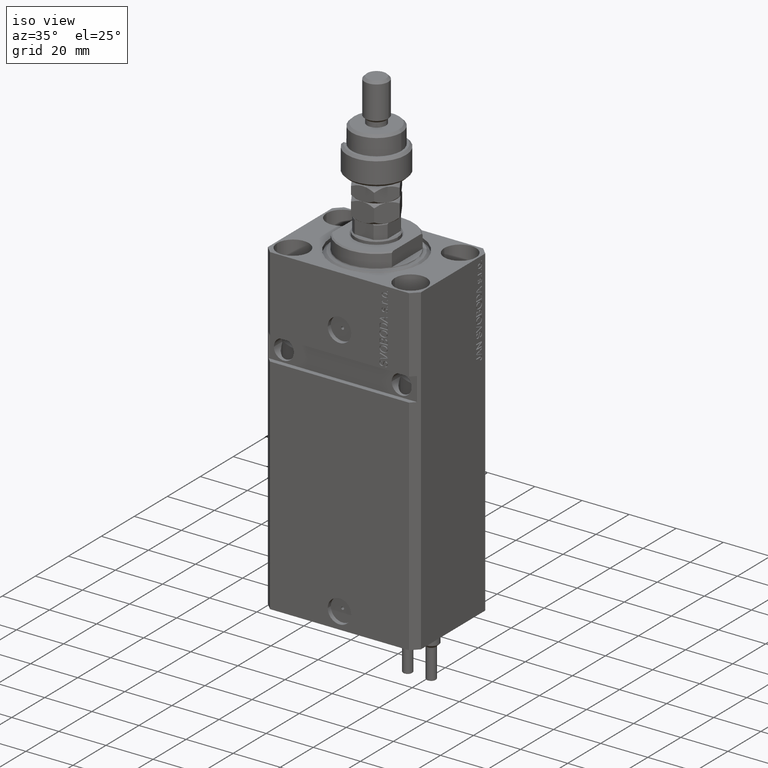
[diagram: clean part render]
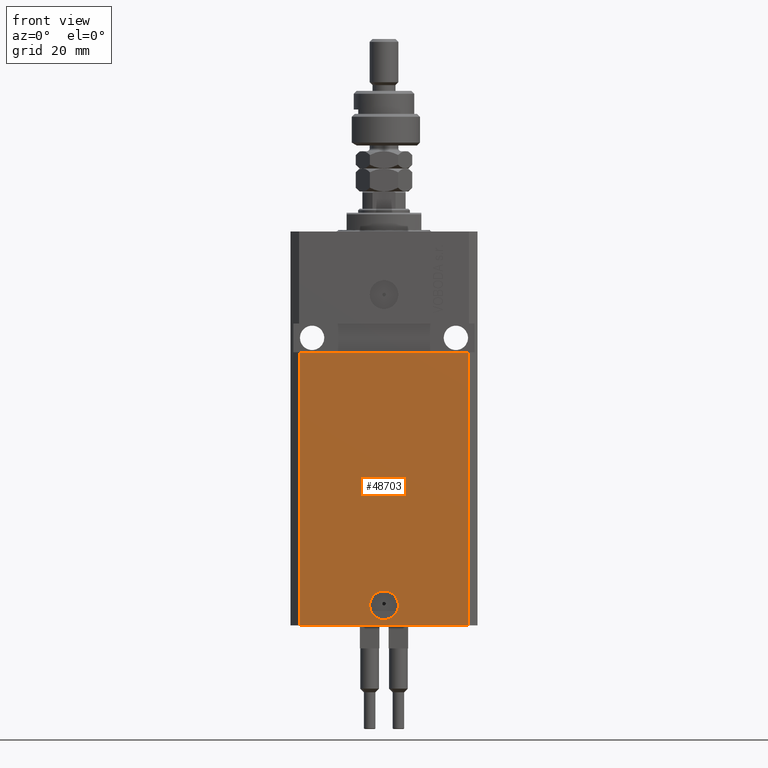
[diagram: tour spotlight — one face highlighted and labeled with its STEP entity id]
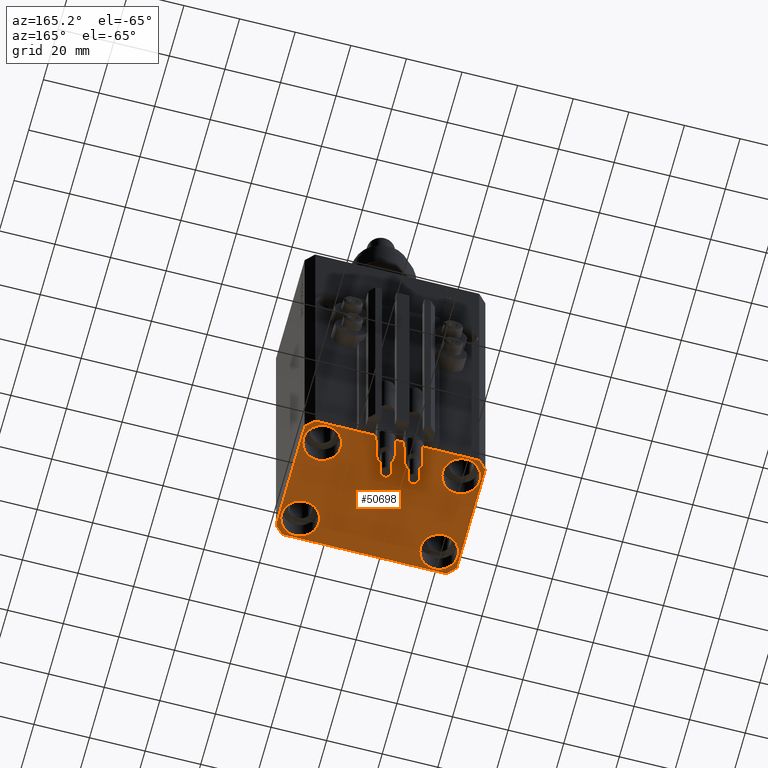
[diagram: tour spotlight — one face highlighted and labeled with its STEP entity id]
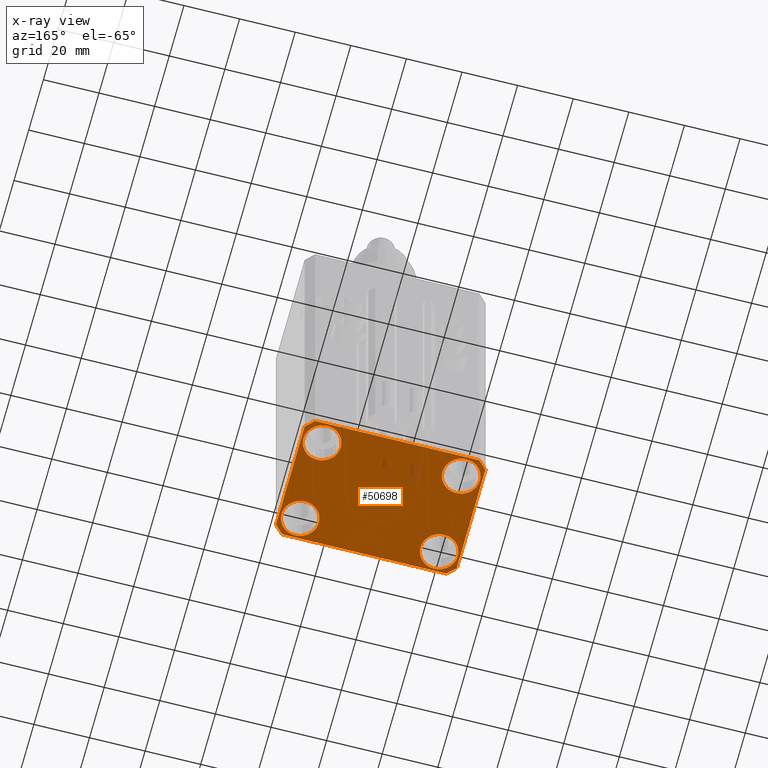
[diagram: x-ray of the same camera — body ghosted, this tour face saturated]
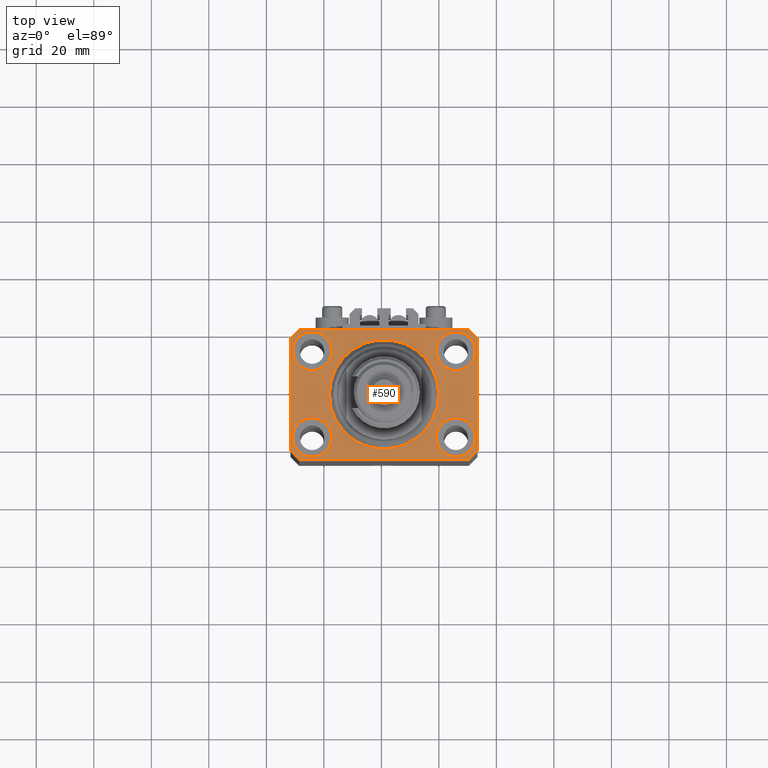
[diagram: tour spotlight — one face highlighted and labeled with its STEP entity id]
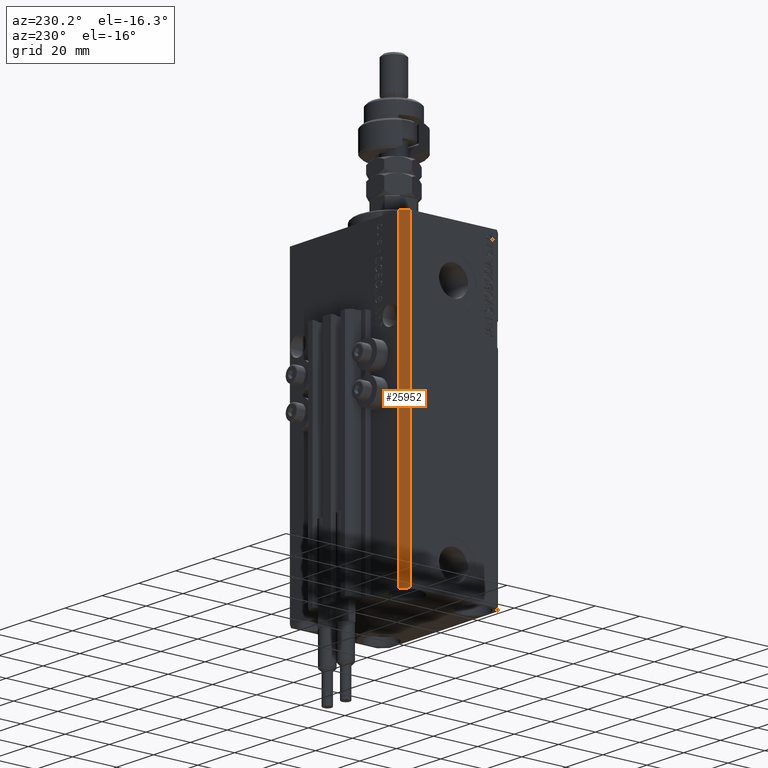
[diagram: tour spotlight — one face highlighted and labeled with its STEP entity id]
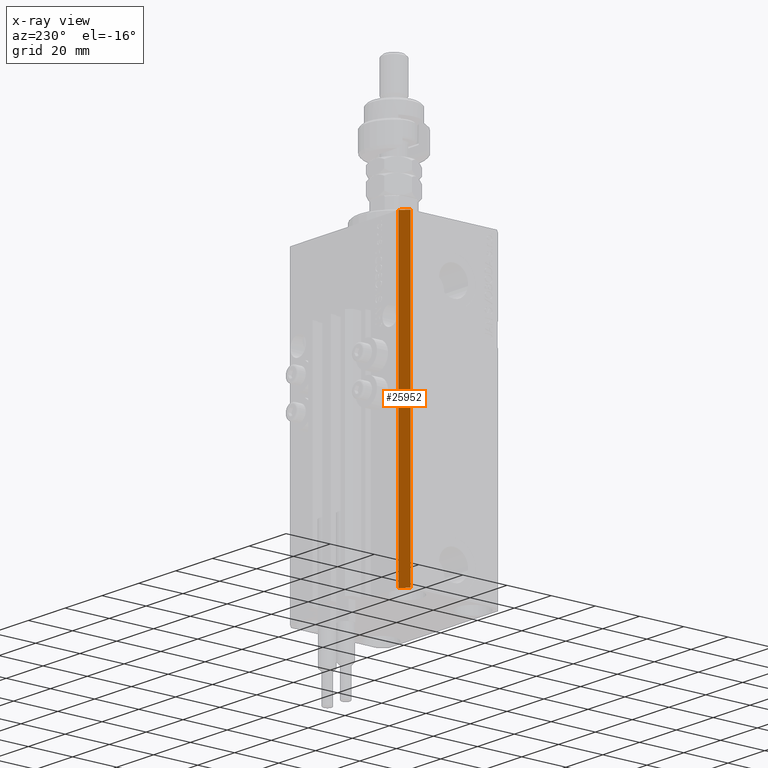
[diagram: x-ray of the same camera — body ghosted, this tour face saturated]
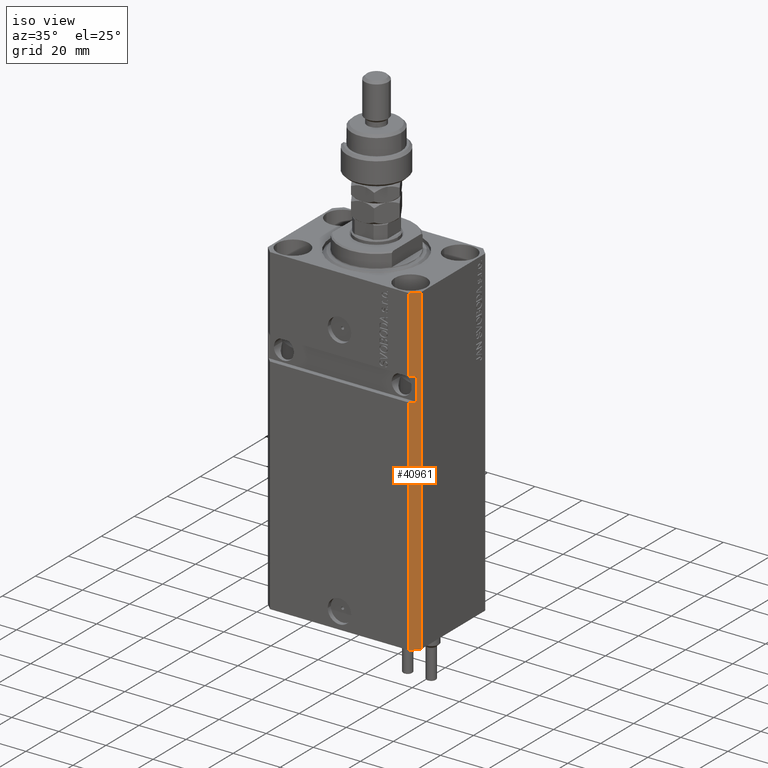
[diagram: tour spotlight — one face highlighted and labeled with its STEP entity id]
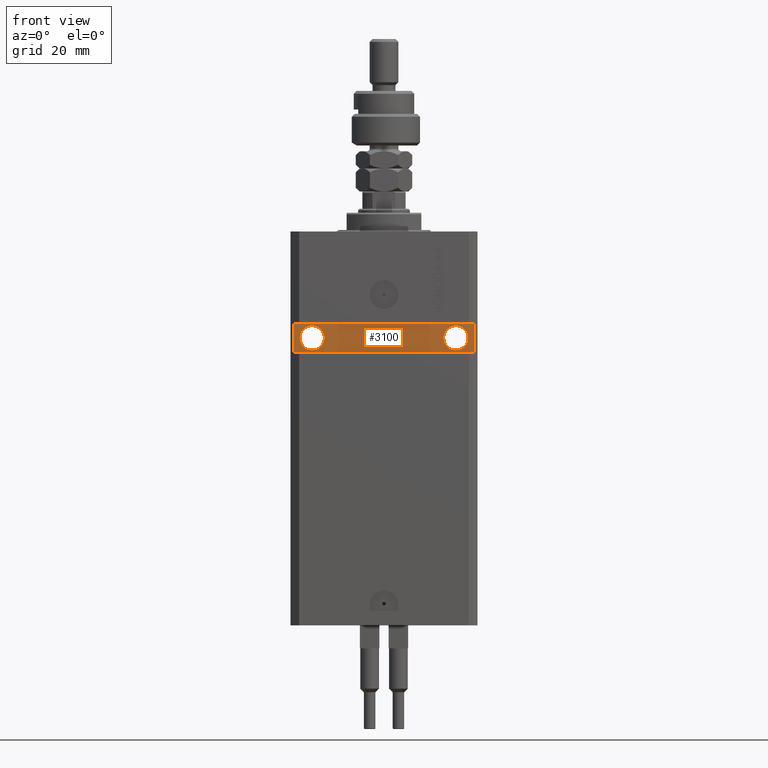
[diagram: tour spotlight — one face highlighted and labeled with its STEP entity id]
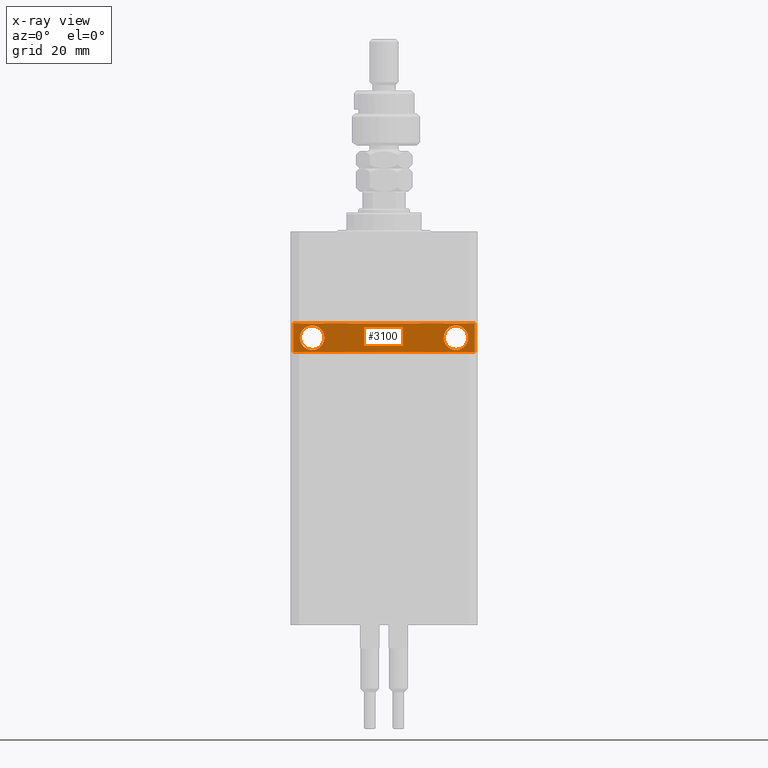
[diagram: x-ray of the same camera — body ghosted, this tour face saturated]
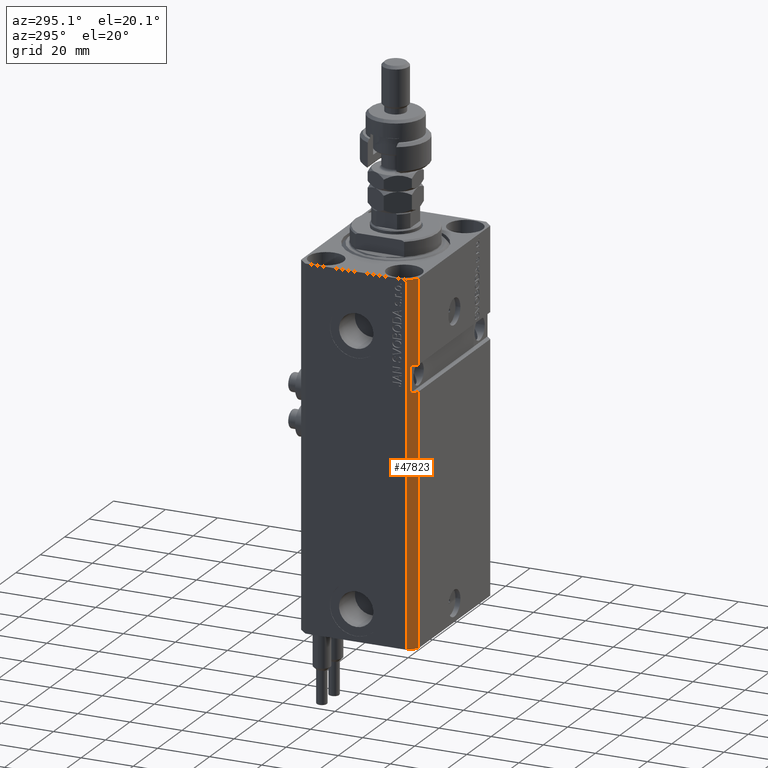
[diagram: tour spotlight — one face highlighted and labeled with its STEP entity id]
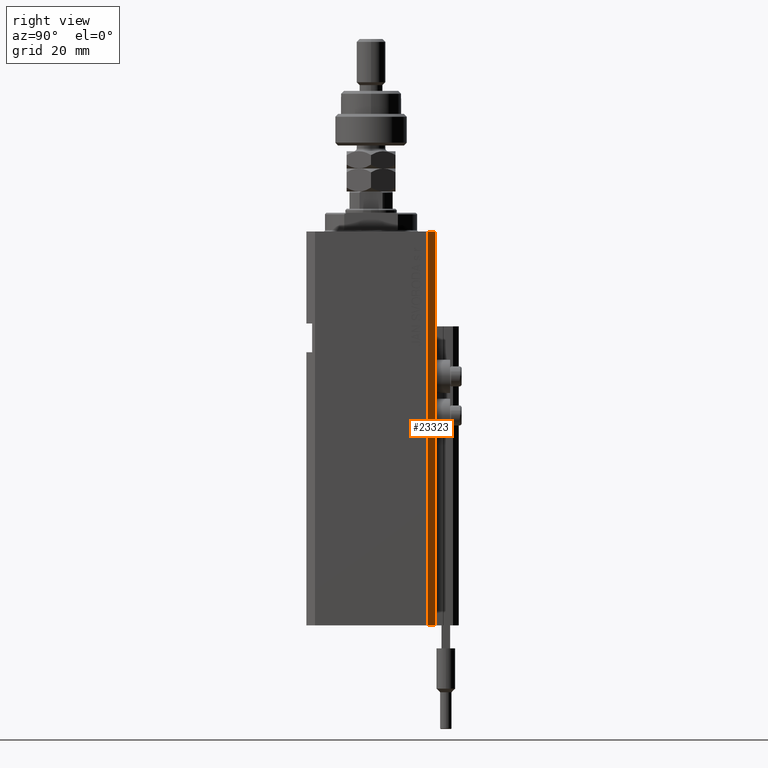
[diagram: tour spotlight — one face highlighted and labeled with its STEP entity id]
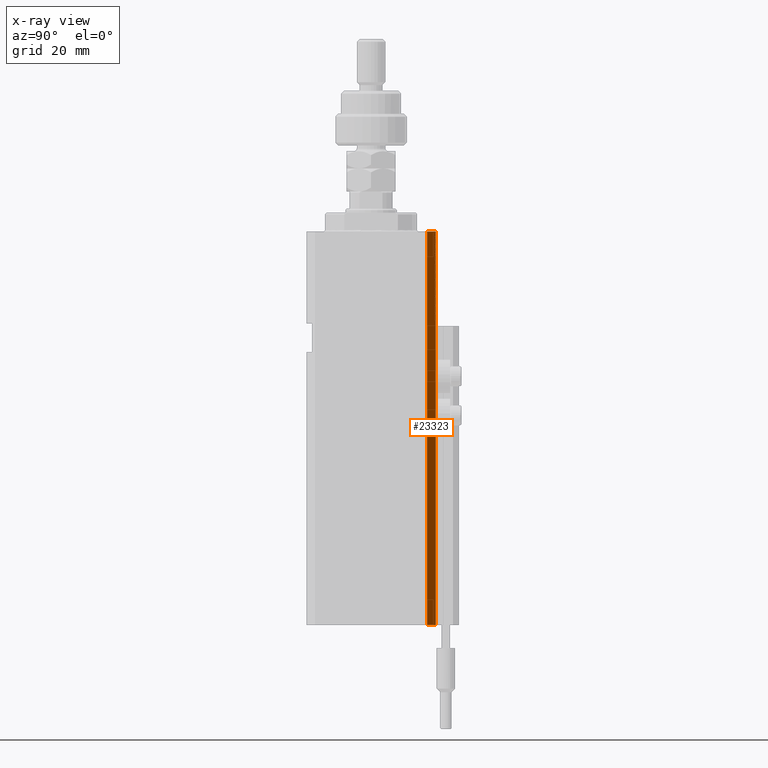
[diagram: x-ray of the same camera — body ghosted, this tour face saturated]
A machine part: a face-by-face anatomy tour. The part has 1204 B-rep faces; the first image is the clean iso view, then the 8 largest visible faces are spotlighted one at a time (largest first), each with its STEP entity span.

Face 1 — front view, entity #48703. In plain terms, the highlighted planar face has unit normal (0, -1, 0).
Definition (entity closure, byte-faithful):
#165 = CARTESIAN_POINT ( 'NONE',  ( -29.49999999999650413, -22.49999999999949907, -137.0000000000000000 ) ) ;
#901 = DIRECTION ( 'NONE',  ( 1.176083712526788232E-16, -1.000000000000000000, 0.000000000000000000 ) ) ;
#4247 = CARTESIAN_POINT ( 'NONE',  ( -29.49999999999650413, -22.49999999999949907, -137.0000000000000000 ) ) ;
#5264 = EDGE_CURVE ( 'NONE', #12922, #46113, #36112, .T. ) ;
#5797 = ORIENTED_EDGE ( 'NONE', *, *, #24553, .F. ) ;
#6750 = VECTOR ( 'NONE', #49590, 1000.000000000000000 ) ;
#7471 = VERTEX_POINT ( 'NONE', #11637 ) ;
#9215 = ORIENTED_EDGE ( 'NONE', *, *, #19786, .T. ) ;
#11045 = CARTESIAN_POINT ( 'NONE',  ( 29.49999999999650413, -22.49999999999949196, -137.0000000000000000 ) ) ;
#11637 = CARTESIAN_POINT ( 'NONE',  ( 29.49999999999650413, -22.49999999999949196, -137.0000000000000000 ) ) ;
#12922 = VERTEX_POINT ( 'NONE', #24177 ) ;
#13085 = CARTESIAN_POINT ( 'NONE',  ( 2.646188353185214061E-15, -22.49999999999949551, -130.0000000000000000 ) ) ;
#13332 = DIRECTION ( 'NONE',  ( 1.000000000000000000, 0.000000000000000000, 0.000000000000000000 ) ) ;
#14542 = VERTEX_POINT ( 'NONE', #44668 ) ;
#15070 = EDGE_CURVE ( 'NONE', #7471, #14542, #30340, .T. ) ;
#15986 = VERTEX_POINT ( 'NONE', #19542 ) ;
#16240 = LINE ( 'NONE', #38883, #50533 ) ;
#16334 = EDGE_CURVE ( 'NONE', #44910, #15986, #39478, .T. ) ;
#16861 = ORIENTED_EDGE ( 'NONE', *, *, #15070, .T. ) ;
#19110 = DIRECTION ( 'NONE',  ( 1.000000000000000000, 1.176083712526788232E-16, 0.000000000000000000 ) ) ;
#19429 = EDGE_LOOP ( 'NONE', ( #40742, #5797 ) ) ;
#19542 = CARTESIAN_POINT ( 'NONE',  ( -29.49999999999650413, -22.49999999999949907, -41.99999999999999289 ) ) ;
#19786 = EDGE_CURVE ( 'NONE', #44910, #7471, #38657, .T. ) ;
#24177 = CARTESIAN_POINT ( 'NONE',  ( 5.000000000000008882, -22.49999999999949551, -130.0000000000000000 ) ) ;
#24553 = EDGE_CURVE ( 'NONE', #46113, #12922, #32477, .T. ) ;
#25381 = CARTESIAN_POINT ( 'NONE',  ( 2.646188353185214061E-15, -22.49999999999949551, -130.0000000000000000 ) ) ;
#28376 = FACE_OUTER_BOUND ( 'NONE', #45762, .T. ) ;
#30340 = LINE ( 'NONE', #11045, #6750 ) ;
#31469 = VECTOR ( 'NONE', #47417, 1000.000000000000000 ) ;
#32149 = DIRECTION ( 'NONE',  ( 1.176083712526788232E-16, -1.000000000000000000, 0.000000000000000000 ) ) ;
#32248 = FACE_BOUND ( 'NONE', #19429, .T. ) ;
#32477 = CIRCLE ( 'NONE', #47242, 5.000000000000006217 ) ;
#33260 = CARTESIAN_POINT ( 'NONE',  ( -29.49999999999650413, -22.49999999999949907, -137.0000000000000000 ) ) ;
#36096 = DIRECTION ( 'NONE',  ( 1.000000000000000000, 1.176083712526788232E-16, 0.000000000000000000 ) ) ;
#36112 = CIRCLE ( 'NONE', #41015, 5.000000000000006217 ) ;
#37664 = ORIENTED_EDGE ( 'NONE', *, *, #40325, .F. ) ;
#38657 = LINE ( 'NONE', #50447, #45501 ) ;
#38883 = CARTESIAN_POINT ( 'NONE',  ( -32.49999999999650413, -22.49999999999949907, -41.99999999999999289 ) ) ;
#39367 = AXIS2_PLACEMENT_3D ( 'NONE', #4247, #901, #36096 ) ;
#39478 = LINE ( 'NONE', #165, #31469 ) ;
#39602 = CARTESIAN_POINT ( 'NONE',  ( -5.000000000000003553, -22.49999999999949551, -130.0000000000000000 ) ) ;
#40325 = EDGE_CURVE ( 'NONE', #15986, #14542, #16240, .T. ) ;
#40621 = ORIENTED_EDGE ( 'NONE', *, *, #16334, .F. ) ;
#40742 = ORIENTED_EDGE ( 'NONE', *, *, #5264, .F. ) ;
#41015 = AXIS2_PLACEMENT_3D ( 'NONE', #13085, #32149, #13332 ) ;
#41055 = DIRECTION ( 'NONE',  ( 1.000000000000000000, 0.000000000000000000, 0.000000000000000000 ) ) ;
#42982 = DIRECTION ( 'NONE',  ( 1.000000000000000000, 1.067522139062765303E-16, 1.067522139062765303E-16 ) ) ;
#44044 = PLANE ( 'NONE',  #39367 ) ;
#44668 = CARTESIAN_POINT ( 'NONE',  ( 29.49999999999650058, -22.49999999999949196, -41.99999999999998579 ) ) ;
#44910 = VERTEX_POINT ( 'NONE', #33260 ) ;
#45501 = VECTOR ( 'NONE', #19110, 1000.000000000000000 ) ;
#45762 = EDGE_LOOP ( 'NONE', ( #37664, #40621, #9215, #16861 ) ) ;
#46113 = VERTEX_POINT ( 'NONE', #39602 ) ;
#47242 = AXIS2_PLACEMENT_3D ( 'NONE', #25381, #48747, #41055 ) ;
#47417 = DIRECTION ( 'NONE',  ( 0.000000000000000000, 0.000000000000000000, 1.000000000000000000 ) ) ;
#48703 = ADVANCED_FACE ( 'NONE', ( #32248, #28376 ), #44044, .T. ) ;
#48747 = DIRECTION ( 'NONE',  ( 1.176083712526788232E-16, -1.000000000000000000, 0.000000000000000000 ) ) ;
#49590 = DIRECTION ( 'NONE',  ( 0.000000000000000000, 0.000000000000000000, 1.000000000000000000 ) ) ;
#50447 = CARTESIAN_POINT ( 'NONE',  ( -29.49999999999650413, -22.49999999999949907, -137.0000000000000000 ) ) ;
#50533 = VECTOR ( 'NONE', #42982, 1000.000000000000000 ) ;

Face 2 — auxiliary view, entity #50698. An x-ray twin of the same camera follows (body ghosted, this face saturated) — the face is partly hidden behind the body. In plain terms, the highlighted planar face has unit normal (0, 0, 1).
Definition (entity closure, byte-faithful):
#1148 = DIRECTION ( 'NONE',  ( -0.000000000000000000, -0.000000000000000000, 1.000000000000000000 ) ) ;
#1771 = ORIENTED_EDGE ( 'NONE', *, *, #22486, .T. ) ;
#2029 = VERTEX_POINT ( 'NONE', #9538 ) ;
#2122 = AXIS2_PLACEMENT_3D ( 'NONE', #8641, #27946, #27694 ) ;
#2753 = DIRECTION ( 'NONE',  ( -0.000000000000000000, -0.000000000000000000, 1.000000000000000000 ) ) ;
#2771 = FACE_OUTER_BOUND ( 'NONE', #43258, .T. ) ;
#3407 = EDGE_CURVE ( 'NONE', #12196, #2029, #32092, .T. ) ;
#3609 = LINE ( 'NONE', #19265, #17212 ) ;
#3682 = DIRECTION ( 'NONE',  ( 0.7071067811865474617, -0.7071067811865474617, 0.000000000000000000 ) ) ;
#3979 = VERTEX_POINT ( 'NONE', #16703 ) ;
#4555 = VERTEX_POINT ( 'NONE', #39234 ) ;
#5795 = DIRECTION ( 'NONE',  ( 1.000000000000000000, 0.000000000000000000, 0.000000000000000000 ) ) ;
#6693 = EDGE_CURVE ( 'NONE', #38348, #34430, #25493, .T. ) ;
#6881 = DIRECTION ( 'NONE',  ( 0.000000000000000000, 0.000000000000000000, 1.000000000000000000 ) ) ;
#7038 = CIRCLE ( 'NONE', #42317, 6.750000000022533087 ) ;
#7109 = CARTESIAN_POINT ( 'NONE',  ( 25.00000000000000355, -15.00000000000000000, -137.0000000000000000 ) ) ;
#7128 = PLANE ( 'NONE',  #45975 ) ;
#7163 = EDGE_CURVE ( 'NONE', #26061, #3979, #18913, .T. ) ;
#7172 = ORIENTED_EDGE ( 'NONE', *, *, #50136, .F. ) ;
#7211 = CARTESIAN_POINT ( 'NONE',  ( -31.75000000004154899, -15.00000000000000000, -137.0000000000000000 ) ) ;
#7305 = EDGE_CURVE ( 'NONE', #7471, #4555, #42829, .T. ) ;
#7384 = FACE_BOUND ( 'NONE', #40338, .T. ) ;
#7471 = VERTEX_POINT ( 'NONE', #11637 ) ;
#7569 = CARTESIAN_POINT ( 'NONE',  ( 32.49999999999651124, -19.49999999999949196, -137.0000000000000000 ) ) ;
#8641 = CARTESIAN_POINT ( 'NONE',  ( -25.00000000000000355, -15.00000000000000000, -137.0000000000000000 ) ) ;
#9307 = EDGE_CURVE ( 'NONE', #28494, #12196, #26004, .T. ) ;
#9538 = CARTESIAN_POINT ( 'NONE',  ( -32.49999999999650413, -19.49999999999949907, -137.0000000000000000 ) ) ;
#10109 = CARTESIAN_POINT ( 'NONE',  ( -29.49999999999650413, 22.49999999999949907, -137.0000000000000000 ) ) ;
#11213 = DIRECTION ( 'NONE',  ( 0.7071067811865483499, 0.7071067811865466846, 0.000000000000000000 ) ) ;
#11637 = CARTESIAN_POINT ( 'NONE',  ( 29.49999999999650413, -22.49999999999949196, -137.0000000000000000 ) ) ;
#11893 = CARTESIAN_POINT ( 'NONE',  ( 32.49999999999702993, 19.49999999999945999, -137.0000000000000000 ) ) ;
#12196 = VERTEX_POINT ( 'NONE', #25551 ) ;
#14156 = DIRECTION ( 'NONE',  ( -0.000000000000000000, -0.000000000000000000, 1.000000000000000000 ) ) ;
#14248 = CIRCLE ( 'NONE', #42990, 6.749999999958452790 ) ;
#14309 = FACE_BOUND ( 'NONE', #49858, .T. ) ;
#14678 = CARTESIAN_POINT ( 'NONE',  ( -29.49999999999650413, 22.49999999999949907, -137.0000000000000000 ) ) ;
#14713 = VERTEX_POINT ( 'NONE', #44051 ) ;
#14753 = EDGE_CURVE ( 'NONE', #14713, #23520, #45334, .T. ) ;
#14884 = ORIENTED_EDGE ( 'NONE', *, *, #44325, .F. ) ;
#15466 = VECTOR ( 'NONE', #32588, 1000.000000000000000 ) ;
#16237 = CARTESIAN_POINT ( 'NONE',  ( -25.00000000000000355, 15.00000000000000000, -137.0000000000000000 ) ) ;
#16501 = CARTESIAN_POINT ( 'NONE',  ( -32.49999999999650413, -19.49999999999949907, -137.0000000000000000 ) ) ;
#16703 = CARTESIAN_POINT ( 'NONE',  ( 31.74999999995845101, 15.00000000000000888, -137.0000000000000000 ) ) ;
#16774 = VERTEX_POINT ( 'NONE', #28346 ) ;
#16848 = EDGE_CURVE ( 'NONE', #16774, #49562, #48671, .T. ) ;
#17212 = VECTOR ( 'NONE', #34964, 1000.000000000000000 ) ;
#17699 = ORIENTED_EDGE ( 'NONE', *, *, #19786, .F. ) ;
#17708 = EDGE_CURVE ( 'NONE', #3979, #26061, #14248, .T. ) ;
#18165 = VECTOR ( 'NONE', #30379, 1000.000000000000114 ) ;
#18913 = CIRCLE ( 'NONE', #47642, 6.749999999958452790 ) ;
#19110 = DIRECTION ( 'NONE',  ( 1.000000000000000000, 1.176083712526788232E-16, 0.000000000000000000 ) ) ;
#19265 = CARTESIAN_POINT ( 'NONE',  ( 29.49999999999707967, 22.49999999999951328, -137.0000000000000000 ) ) ;
#19535 = CARTESIAN_POINT ( 'NONE',  ( 29.49999999999707967, 22.49999999999951328, -137.0000000000000000 ) ) ;
#19786 = EDGE_CURVE ( 'NONE', #44910, #7471, #38657, .T. ) ;
#19885 = DIRECTION ( 'NONE',  ( -0.7071067811865352493, 0.7071067811865597852, 0.000000000000000000 ) ) ;
#20086 = EDGE_LOOP ( 'NONE', ( #49800, #39205 ) ) ;
#20103 = DIRECTION ( 'NONE',  ( -0.000000000000000000, -0.000000000000000000, 1.000000000000000000 ) ) ;
#20274 = ORIENTED_EDGE ( 'NONE', *, *, #3407, .F. ) ;
#20382 = CARTESIAN_POINT ( 'NONE',  ( 32.49999999999702993, 19.49999999999945999, -137.0000000000000000 ) ) ;
#20411 = CARTESIAN_POINT ( 'NONE',  ( -25.00000000000000355, -15.00000000000000000, -137.0000000000000000 ) ) ;
#21890 = EDGE_CURVE ( 'NONE', #23520, #14713, #32482, .T. ) ;
#22300 = FACE_BOUND ( 'NONE', #27701, .T. ) ;
#22402 = ORIENTED_EDGE ( 'NONE', *, *, #17708, .T. ) ;
#22486 = EDGE_CURVE ( 'NONE', #49562, #16774, #7038, .T. ) ;
#22793 = CARTESIAN_POINT ( 'NONE',  ( 29.49999999999650413, -22.49999999999949196, -137.0000000000000000 ) ) ;
#23195 = AXIS2_PLACEMENT_3D ( 'NONE', #20411, #1148, #27886 ) ;
#23520 = VERTEX_POINT ( 'NONE', #7211 ) ;
#23749 = LINE ( 'NONE', #20382, #38403 ) ;
#23993 = LINE ( 'NONE', #16501, #48039 ) ;
#24653 = EDGE_CURVE ( 'NONE', #34430, #38348, #33282, .T. ) ;
#24699 = VECTOR ( 'NONE', #11213, 1000.000000000000000 ) ;
#25137 = ORIENTED_EDGE ( 'NONE', *, *, #14753, .T. ) ;
#25461 = ORIENTED_EDGE ( 'NONE', *, *, #33177, .F. ) ;
#25493 = CIRCLE ( 'NONE', #30416, 6.749999999977465137 ) ;
#25551 = CARTESIAN_POINT ( 'NONE',  ( -32.49999999999650413, 19.49999999999949907, -137.0000000000000000 ) ) ;
#26004 = LINE ( 'NONE', #14678, #18165 ) ;
#26032 = CARTESIAN_POINT ( 'NONE',  ( -18.24999999997747224, 15.00000000000000000, -137.0000000000000000 ) ) ;
#26061 = VERTEX_POINT ( 'NONE', #49393 ) ;
#26398 = CARTESIAN_POINT ( 'NONE',  ( 24.99999999999999645, 15.00000000000000888, -137.0000000000000000 ) ) ;
#26695 = CARTESIAN_POINT ( 'NONE',  ( 31.74999999997746869, -15.00000000000000000, -137.0000000000000000 ) ) ;
#27103 = LINE ( 'NONE', #7569, #39332 ) ;
#27694 = DIRECTION ( 'NONE',  ( 1.000000000000000000, 0.000000000000000000, 0.000000000000000000 ) ) ;
#27701 = EDGE_LOOP ( 'NONE', ( #40869, #25137 ) ) ;
#27886 = DIRECTION ( 'NONE',  ( 1.000000000000000000, 0.000000000000000000, 0.000000000000000000 ) ) ;
#27946 = DIRECTION ( 'NONE',  ( -0.000000000000000000, -0.000000000000000000, 1.000000000000000000 ) ) ;
#28346 = CARTESIAN_POINT ( 'NONE',  ( -31.75000000002253842, 15.00000000000000000, -137.0000000000000000 ) ) ;
#28494 = VERTEX_POINT ( 'NONE', #10109 ) ;
#30379 = DIRECTION ( 'NONE',  ( -0.7071067811865474617, -0.7071067811865474617, 0.000000000000000000 ) ) ;
#30416 = AXIS2_PLACEMENT_3D ( 'NONE', #40990, #36895, #5795 ) ;
#31275 = CARTESIAN_POINT ( 'NONE',  ( 24.99999999999999645, 15.00000000000000888, -137.0000000000000000 ) ) ;
#31295 = ORIENTED_EDGE ( 'NONE', *, *, #37035, .F. ) ;
#31530 = DIRECTION ( 'NONE',  ( -0.000000000000000000, -0.000000000000000000, 1.000000000000000000 ) ) ;
#32092 = LINE ( 'NONE', #47230, #15466 ) ;
#32482 = CIRCLE ( 'NONE', #2122, 6.750000000041541881 ) ;
#32588 = DIRECTION ( 'NONE',  ( 0.000000000000000000, -1.000000000000000000, 0.000000000000000000 ) ) ;
#33177 = EDGE_CURVE ( 'NONE', #4555, #41614, #27103, .T. ) ;
#33260 = CARTESIAN_POINT ( 'NONE',  ( -29.49999999999650413, -22.49999999999949907, -137.0000000000000000 ) ) ;
#33282 = CIRCLE ( 'NONE', #35746, 6.749999999977465137 ) ;
#33501 = ORIENTED_EDGE ( 'NONE', *, *, #16848, .T. ) ;
#33681 = ORIENTED_EDGE ( 'NONE', *, *, #9307, .F. ) ;
#34430 = VERTEX_POINT ( 'NONE', #26695 ) ;
#34964 = DIRECTION ( 'NONE',  ( -1.000000000000000000, -2.352167425053553784E-16, 0.000000000000000000 ) ) ;
#35746 = AXIS2_PLACEMENT_3D ( 'NONE', #7109, #2753, #38468 ) ;
#35979 = ORIENTED_EDGE ( 'NONE', *, *, #7163, .T. ) ;
#36895 = DIRECTION ( 'NONE',  ( -0.000000000000000000, -0.000000000000000000, 1.000000000000000000 ) ) ;
#37035 = EDGE_CURVE ( 'NONE', #2029, #44910, #23993, .T. ) ;
#37815 = CARTESIAN_POINT ( 'NONE',  ( -25.00000000000000355, 15.00000000000000000, -137.0000000000000000 ) ) ;
#38233 = DIRECTION ( 'NONE',  ( 1.000000000000000000, 0.000000000000000000, -0.000000000000000000 ) ) ;
#38348 = VERTEX_POINT ( 'NONE', #41114 ) ;
#38403 = VECTOR ( 'NONE', #19885, 1000.000000000000000 ) ;
#38468 = DIRECTION ( 'NONE',  ( 1.000000000000000000, 0.000000000000000000, 0.000000000000000000 ) ) ;
#38657 = LINE ( 'NONE', #50447, #45501 ) ;
#38746 = CARTESIAN_POINT ( 'NONE',  ( 0.000000000000000000, 0.000000000000000000, -137.0000000000000000 ) ) ;
#38854 = AXIS2_PLACEMENT_3D ( 'NONE', #37815, #14156, #49872 ) ;
#39205 = ORIENTED_EDGE ( 'NONE', *, *, #24653, .T. ) ;
#39234 = CARTESIAN_POINT ( 'NONE',  ( 32.49999999999651124, -19.49999999999949196, -137.0000000000000000 ) ) ;
#39332 = VECTOR ( 'NONE', #40090, 1000.000000000000000 ) ;
#40090 = DIRECTION ( 'NONE',  ( 1.334402673828349134E-14, 1.000000000000000000, 0.000000000000000000 ) ) ;
#40338 = EDGE_LOOP ( 'NONE', ( #33501, #1771 ) ) ;
#40542 = VERTEX_POINT ( 'NONE', #19535 ) ;
#40869 = ORIENTED_EDGE ( 'NONE', *, *, #21890, .T. ) ;
#40990 = CARTESIAN_POINT ( 'NONE',  ( 25.00000000000000355, -15.00000000000000000, -137.0000000000000000 ) ) ;
#41114 = CARTESIAN_POINT ( 'NONE',  ( 18.25000000002253842, -15.00000000000000000, -137.0000000000000000 ) ) ;
#41614 = VERTEX_POINT ( 'NONE', #11893 ) ;
#41806 = DIRECTION ( 'NONE',  ( 1.000000000000000000, 0.000000000000000000, 0.000000000000000000 ) ) ;
#42317 = AXIS2_PLACEMENT_3D ( 'NONE', #16237, #20103, #43745 ) ;
#42555 = DIRECTION ( 'NONE',  ( 1.000000000000000000, 0.000000000000000000, 0.000000000000000000 ) ) ;
#42829 = LINE ( 'NONE', #22793, #24699 ) ;
#42990 = AXIS2_PLACEMENT_3D ( 'NONE', #31275, #31530, #42555 ) ;
#43258 = EDGE_LOOP ( 'NONE', ( #7172, #14884, #25461, #46282, #17699, #31295, #20274, #33681 ) ) ;
#43745 = DIRECTION ( 'NONE',  ( 1.000000000000000000, 0.000000000000000000, 0.000000000000000000 ) ) ;
#44051 = CARTESIAN_POINT ( 'NONE',  ( -18.24999999995845812, -15.00000000000000000, -137.0000000000000000 ) ) ;
#44325 = EDGE_CURVE ( 'NONE', #41614, #40542, #23749, .T. ) ;
#44910 = VERTEX_POINT ( 'NONE', #33260 ) ;
#45153 = DIRECTION ( 'NONE',  ( -0.000000000000000000, -0.000000000000000000, 1.000000000000000000 ) ) ;
#45334 = CIRCLE ( 'NONE', #23195, 6.750000000041541881 ) ;
#45501 = VECTOR ( 'NONE', #19110, 1000.000000000000000 ) ;
#45975 = AXIS2_PLACEMENT_3D ( 'NONE', #38746, #6881, #38233 ) ;
#46183 = FACE_BOUND ( 'NONE', #20086, .T. ) ;
#46282 = ORIENTED_EDGE ( 'NONE', *, *, #7305, .F. ) ;
#47230 = CARTESIAN_POINT ( 'NONE',  ( -32.49999999999650413, 19.49999999999949907, -137.0000000000000000 ) ) ;
#47642 = AXIS2_PLACEMENT_3D ( 'NONE', #26398, #45153, #41806 ) ;
#48039 = VECTOR ( 'NONE', #3682, 1000.000000000000114 ) ;
#48671 = CIRCLE ( 'NONE', #38854, 6.750000000022533087 ) ;
#49393 = CARTESIAN_POINT ( 'NONE',  ( 18.25000000004154543, 15.00000000000000888, -137.0000000000000000 ) ) ;
#49562 = VERTEX_POINT ( 'NONE', #26032 ) ;
#49800 = ORIENTED_EDGE ( 'NONE', *, *, #6693, .T. ) ;
#49858 = EDGE_LOOP ( 'NONE', ( #35979, #22402 ) ) ;
#49872 = DIRECTION ( 'NONE',  ( 1.000000000000000000, 0.000000000000000000, 0.000000000000000000 ) ) ;
#50136 = EDGE_CURVE ( 'NONE', #40542, #28494, #3609, .T. ) ;
#50447 = CARTESIAN_POINT ( 'NONE',  ( -29.49999999999650413, -22.49999999999949907, -137.0000000000000000 ) ) ;
#50698 = ADVANCED_FACE ( 'NONE', ( #22300, #46183, #14309, #7384, #2771 ), #7128, .F. ) ;

Face 3 — top view, entity #590. In plain terms, the highlighted planar face has unit normal (0, 0, 1).
Definition (entity closure, byte-faithful):
#117 = CARTESIAN_POINT ( 'NONE',  ( -25.00000000000000355, 15.00000000000000000, 0.000000000000000000 ) ) ;
#150 = VERTEX_POINT ( 'NONE', #19189 ) ;
#590 = ADVANCED_FACE ( 'NONE', ( #33003, #33745, #36586, #25524, #48640, #6238 ), #24778, .T. ) ;
#1170 = DIRECTION ( 'NONE',  ( -1.000000000000000000, -2.352167425053553784E-16, 0.000000000000000000 ) ) ;
#1835 = DIRECTION ( 'NONE',  ( 0.000000000000000000, 0.000000000000000000, 1.000000000000000000 ) ) ;
#2110 = EDGE_CURVE ( 'NONE', #33729, #38985, #17500, .T. ) ;
#2326 = DIRECTION ( 'NONE',  ( 1.000000000000000000, 0.000000000000000000, 0.000000000000000000 ) ) ;
#2341 = LINE ( 'NONE', #6954, #12967 ) ;
#2493 = CIRCLE ( 'NONE', #31228, 6.749999999977465137 ) ;
#2560 = ORIENTED_EDGE ( 'NONE', *, *, #46037, .T. ) ;
#3114 = AXIS2_PLACEMENT_3D ( 'NONE', #13927, #29380, #45039 ) ;
#4882 = CIRCLE ( 'NONE', #11430, 6.749999999958452790 ) ;
#5169 = ORIENTED_EDGE ( 'NONE', *, *, #39572, .F. ) ;
#5801 = AXIS2_PLACEMENT_3D ( 'NONE', #24448, #8751, #25198 ) ;
#6100 = LINE ( 'NONE', #33860, #27149 ) ;
#6238 = FACE_OUTER_BOUND ( 'NONE', #6988, .T. ) ;
#6267 = CARTESIAN_POINT ( 'NONE',  ( 31.74999999995845101, 15.00000000000000888, 0.000000000000000000 ) ) ;
#6453 = CARTESIAN_POINT ( 'NONE',  ( -32.49999999999650413, -19.49999999999949907, 0.000000000000000000 ) ) ;
#6576 = VERTEX_POINT ( 'NONE', #39230 ) ;
#6954 = CARTESIAN_POINT ( 'NONE',  ( 29.49999999999650413, -22.49999999999949196, 0.000000000000000000 ) ) ;
#6988 = EDGE_LOOP ( 'NONE', ( #23433, #33885, #38102, #12034, #38347, #2560, #14625, #27236 ) ) ;
#7173 = EDGE_CURVE ( 'NONE', #22151, #32850, #6100, .T. ) ;
#7674 = DIRECTION ( 'NONE',  ( 1.000000000000000000, 0.000000000000000000, 0.000000000000000000 ) ) ;
#8163 = CARTESIAN_POINT ( 'NONE',  ( 24.99999999999999645, 15.00000000000000888, 0.000000000000000000 ) ) ;
#8319 = EDGE_LOOP ( 'NONE', ( #14511, #16038 ) ) ;
#8342 = CIRCLE ( 'NONE', #37079, 19.00000000000000000 ) ;
#8751 = DIRECTION ( 'NONE',  ( 0.000000000000000000, 0.000000000000000000, 1.000000000000000000 ) ) ;
#8785 = VECTOR ( 'NONE', #33289, 1000.000000000000000 ) ;
#8894 = VECTOR ( 'NONE', #19493, 1000.000000000000000 ) ;
#8978 = CARTESIAN_POINT ( 'NONE',  ( -18.24999999995846167, -15.00000000000000000, 0.000000000000000000 ) ) ;
#9603 = EDGE_CURVE ( 'NONE', #36974, #42558, #48547, .T. ) ;
#9707 = EDGE_CURVE ( 'NONE', #12450, #11552, #47250, .T. ) ;
#10006 = EDGE_CURVE ( 'NONE', #6576, #49449, #28071, .T. ) ;
#10325 = ORIENTED_EDGE ( 'NONE', *, *, #35147, .F. ) ;
#10410 = EDGE_CURVE ( 'NONE', #42558, #36974, #41186, .T. ) ;
#10610 = CARTESIAN_POINT ( 'NONE',  ( 29.49999999999650413, -22.49999999999949196, 0.000000000000000000 ) ) ;
#11014 = ORIENTED_EDGE ( 'NONE', *, *, #10410, .F. ) ;
#11430 = AXIS2_PLACEMENT_3D ( 'NONE', #8163, #35668, #16112 ) ;
#11527 = CARTESIAN_POINT ( 'NONE',  ( 25.00000000000000355, -15.00000000000000000, 0.000000000000000000 ) ) ;
#11552 = VERTEX_POINT ( 'NONE', #26042 ) ;
#12034 = ORIENTED_EDGE ( 'NONE', *, *, #37238, .T. ) ;
#12217 = CARTESIAN_POINT ( 'NONE',  ( 29.49999999999707967, 22.49999999999951328, 0.000000000000000000 ) ) ;
#12450 = VERTEX_POINT ( 'NONE', #23217 ) ;
#12967 = VECTOR ( 'NONE', #18764, 1000.000000000000000 ) ;
#13105 = CARTESIAN_POINT ( 'NONE',  ( 0.000000000000000000, 0.000000000000000000, 0.000000000000000000 ) ) ;
#13927 = CARTESIAN_POINT ( 'NONE',  ( 0.000000000000000000, 0.000000000000000000, 0.000000000000000000 ) ) ;
#14511 = ORIENTED_EDGE ( 'NONE', *, *, #33034, .F. ) ;
#14625 = ORIENTED_EDGE ( 'NONE', *, *, #47282, .T. ) ;
#14846 = CARTESIAN_POINT ( 'NONE',  ( -32.49999999999650413, 19.49999999999949907, 0.000000000000000000 ) ) ;
#15539 = VECTOR ( 'NONE', #1170, 1000.000000000000000 ) ;
#16038 = ORIENTED_EDGE ( 'NONE', *, *, #28018, .F. ) ;
#16112 = DIRECTION ( 'NONE',  ( 1.000000000000000000, 0.000000000000000000, 0.000000000000000000 ) ) ;
#16165 = CARTESIAN_POINT ( 'NONE',  ( 32.49999999999651124, -19.49999999999949196, 0.000000000000000000 ) ) ;
#16318 = LINE ( 'NONE', #12217, #15539 ) ;
#16711 = ORIENTED_EDGE ( 'NONE', *, *, #35586, .F. ) ;
#17372 = DIRECTION ( 'NONE',  ( 1.000000000000000000, 0.000000000000000000, 0.000000000000000000 ) ) ;
#17500 = LINE ( 'NONE', #21861, #26972 ) ;
#17532 = VERTEX_POINT ( 'NONE', #41793 ) ;
#17585 = LINE ( 'NONE', #29682, #8785 ) ;
#17712 = ORIENTED_EDGE ( 'NONE', *, *, #9603, .F. ) ;
#17736 = DIRECTION ( 'NONE',  ( 1.000000000000000000, 1.176083712526788232E-16, 0.000000000000000000 ) ) ;
#18664 = DIRECTION ( 'NONE',  ( -0.7071067811865474617, -0.7071067811865474617, 0.000000000000000000 ) ) ;
#18764 = DIRECTION ( 'NONE',  ( 0.7071067811865483499, 0.7071067811865466846, 0.000000000000000000 ) ) ;
#18852 = DIRECTION ( 'NONE',  ( 1.000000000000000000, 0.000000000000000000, 0.000000000000000000 ) ) ;
#19189 = CARTESIAN_POINT ( 'NONE',  ( 19.00000000000000000, 0.000000000000000000, 0.000000000000000000 ) ) ;
#19493 = DIRECTION ( 'NONE',  ( 1.334402673828349134E-14, 1.000000000000000000, 0.000000000000000000 ) ) ;
#20266 = VERTEX_POINT ( 'NONE', #20817 ) ;
#20799 = ORIENTED_EDGE ( 'NONE', *, *, #10006, .F. ) ;
#20817 = CARTESIAN_POINT ( 'NONE',  ( -19.00000000000000000, 2.326828918379970970E-15, 0.000000000000000000 ) ) ;
#21242 = DIRECTION ( 'NONE',  ( 0.000000000000000000, 0.000000000000000000, 1.000000000000000000 ) ) ;
#21861 = CARTESIAN_POINT ( 'NONE',  ( -29.49999999999650413, -22.49999999999949907, 0.000000000000000000 ) ) ;
#22151 = VERTEX_POINT ( 'NONE', #30215 ) ;
#23217 = CARTESIAN_POINT ( 'NONE',  ( 32.49999999999702993, 19.49999999999945999, 0.000000000000000000 ) ) ;
#23433 = ORIENTED_EDGE ( 'NONE', *, *, #33869, .T. ) ;
#23556 = CIRCLE ( 'NONE', #34220, 6.749999999958452790 ) ;
#24224 = VERTEX_POINT ( 'NONE', #16165 ) ;
#24255 = EDGE_LOOP ( 'NONE', ( #11014, #17712 ) ) ;
#24448 = CARTESIAN_POINT ( 'NONE',  ( -25.00000000000000355, -15.00000000000000000, 0.000000000000000000 ) ) ;
#24778 = PLANE ( 'NONE',  #3114 ) ;
#25198 = DIRECTION ( 'NONE',  ( 1.000000000000000000, 0.000000000000000000, 0.000000000000000000 ) ) ;
#25310 = AXIS2_PLACEMENT_3D ( 'NONE', #29214, #48721, #17372 ) ;
#25356 = CARTESIAN_POINT ( 'NONE',  ( 24.99999999999999645, 15.00000000000000888, 0.000000000000000000 ) ) ;
#25524 = FACE_BOUND ( 'NONE', #43292, .T. ) ;
#25902 = CARTESIAN_POINT ( 'NONE',  ( -32.49999999999650413, -19.49999999999949907, 0.000000000000000000 ) ) ;
#26042 = CARTESIAN_POINT ( 'NONE',  ( 29.49999999999707967, 22.49999999999951328, 0.000000000000000000 ) ) ;
#26414 = CARTESIAN_POINT ( 'NONE',  ( 31.74999999997746869, -15.00000000000000000, 0.000000000000000000 ) ) ;
#26972 = VECTOR ( 'NONE', #17736, 1000.000000000000000 ) ;
#27149 = VECTOR ( 'NONE', #18664, 1000.000000000000114 ) ;
#27231 = DIRECTION ( 'NONE',  ( -0.7071067811865352493, 0.7071067811865597852, 0.000000000000000000 ) ) ;
#27236 = ORIENTED_EDGE ( 'NONE', *, *, #9707, .T. ) ;
#27467 = DIRECTION ( 'NONE',  ( 0.000000000000000000, 0.000000000000000000, 1.000000000000000000 ) ) ;
#27585 = CARTESIAN_POINT ( 'NONE',  ( -31.75000000004154899, -15.00000000000000000, 0.000000000000000000 ) ) ;
#28018 = EDGE_CURVE ( 'NONE', #43603, #42407, #23556, .T. ) ;
#28071 = CIRCLE ( 'NONE', #32186, 6.749999999977465137 ) ;
#28949 = DIRECTION ( 'NONE',  ( 1.000000000000000000, 0.000000000000000000, 0.000000000000000000 ) ) ;
#29214 = CARTESIAN_POINT ( 'NONE',  ( 0.000000000000000000, 0.000000000000000000, 0.000000000000000000 ) ) ;
#29380 = DIRECTION ( 'NONE',  ( 0.000000000000000000, 0.000000000000000000, 1.000000000000000000 ) ) ;
#29682 = CARTESIAN_POINT ( 'NONE',  ( -32.49999999999650413, 19.49999999999949907, 0.000000000000000000 ) ) ;
#30215 = CARTESIAN_POINT ( 'NONE',  ( -29.49999999999650413, 22.49999999999949907, 0.000000000000000000 ) ) ;
#30816 = CARTESIAN_POINT ( 'NONE',  ( 32.49999999999651124, -19.49999999999949196, 0.000000000000000000 ) ) ;
#31210 = DIRECTION ( 'NONE',  ( 0.000000000000000000, 0.000000000000000000, 1.000000000000000000 ) ) ;
#31228 = AXIS2_PLACEMENT_3D ( 'NONE', #11527, #27467, #7674 ) ;
#32186 = AXIS2_PLACEMENT_3D ( 'NONE', #44359, #48702, #28949 ) ;
#32721 = CARTESIAN_POINT ( 'NONE',  ( 18.25000000004154543, 15.00000000000000888, 0.000000000000000000 ) ) ;
#32850 = VERTEX_POINT ( 'NONE', #14846 ) ;
#33003 = FACE_BOUND ( 'NONE', #24255, .T. ) ;
#33034 = EDGE_CURVE ( 'NONE', #42407, #43603, #4882, .T. ) ;
#33289 = DIRECTION ( 'NONE',  ( 0.000000000000000000, -1.000000000000000000, 0.000000000000000000 ) ) ;
#33356 = VECTOR ( 'NONE', #42412, 1000.000000000000114 ) ;
#33690 = CARTESIAN_POINT ( 'NONE',  ( -25.00000000000000355, 15.00000000000000000, 0.000000000000000000 ) ) ;
#33729 = VERTEX_POINT ( 'NONE', #37945 ) ;
#33745 = FACE_BOUND ( 'NONE', #48876, .T. ) ;
#33860 = CARTESIAN_POINT ( 'NONE',  ( -29.49999999999650413, 22.49999999999949907, 0.000000000000000000 ) ) ;
#33869 = EDGE_CURVE ( 'NONE', #11552, #22151, #16318, .T. ) ;
#33885 = ORIENTED_EDGE ( 'NONE', *, *, #7173, .T. ) ;
#34220 = AXIS2_PLACEMENT_3D ( 'NONE', #25356, #21242, #40523 ) ;
#34632 = VECTOR ( 'NONE', #27231, 1000.000000000000000 ) ;
#34645 = EDGE_CURVE ( 'NONE', #49449, #6576, #2493, .T. ) ;
#35147 = EDGE_CURVE ( 'NONE', #17532, #50476, #50176, .T. ) ;
#35464 = CARTESIAN_POINT ( 'NONE',  ( 32.49999999999702993, 19.49999999999945999, 0.000000000000000000 ) ) ;
#35586 = EDGE_CURVE ( 'NONE', #20266, #150, #8342, .T. ) ;
#35668 = DIRECTION ( 'NONE',  ( 0.000000000000000000, 0.000000000000000000, 1.000000000000000000 ) ) ;
#36586 = FACE_BOUND ( 'NONE', #8319, .T. ) ;
#36776 = ORIENTED_EDGE ( 'NONE', *, *, #34645, .F. ) ;
#36974 = VERTEX_POINT ( 'NONE', #27585 ) ;
#37079 = AXIS2_PLACEMENT_3D ( 'NONE', #13105, #47560, #48310 ) ;
#37238 = EDGE_CURVE ( 'NONE', #39900, #33729, #38316, .T. ) ;
#37945 = CARTESIAN_POINT ( 'NONE',  ( -29.49999999999650413, -22.49999999999949907, 0.000000000000000000 ) ) ;
#38102 = ORIENTED_EDGE ( 'NONE', *, *, #44038, .T. ) ;
#38316 = LINE ( 'NONE', #6453, #33356 ) ;
#38347 = ORIENTED_EDGE ( 'NONE', *, *, #2110, .T. ) ;
#38985 = VERTEX_POINT ( 'NONE', #10610 ) ;
#39230 = CARTESIAN_POINT ( 'NONE',  ( 18.25000000002253842, -15.00000000000000000, 0.000000000000000000 ) ) ;
#39370 = ORIENTED_EDGE ( 'NONE', *, *, #45433, .F. ) ;
#39572 = EDGE_CURVE ( 'NONE', #50476, #17532, #49680, .T. ) ;
#39637 = EDGE_LOOP ( 'NONE', ( #39370, #16711 ) ) ;
#39900 = VERTEX_POINT ( 'NONE', #25902 ) ;
#40523 = DIRECTION ( 'NONE',  ( 1.000000000000000000, 0.000000000000000000, 0.000000000000000000 ) ) ;
#41186 = CIRCLE ( 'NONE', #47754, 6.750000000041541881 ) ;
#41691 = DIRECTION ( 'NONE',  ( 0.000000000000000000, 0.000000000000000000, 1.000000000000000000 ) ) ;
#41793 = CARTESIAN_POINT ( 'NONE',  ( -31.75000000002253842, 15.00000000000000000, 0.000000000000000000 ) ) ;
#42407 = VERTEX_POINT ( 'NONE', #6267 ) ;
#42412 = DIRECTION ( 'NONE',  ( 0.7071067811865474617, -0.7071067811865474617, 0.000000000000000000 ) ) ;
#42558 = VERTEX_POINT ( 'NONE', #8978 ) ;
#43292 = EDGE_LOOP ( 'NONE', ( #5169, #10325 ) ) ;
#43603 = VERTEX_POINT ( 'NONE', #32721 ) ;
#44038 = EDGE_CURVE ( 'NONE', #32850, #39900, #17585, .T. ) ;
#44164 = CARTESIAN_POINT ( 'NONE',  ( -18.24999999997747224, 15.00000000000000000, 0.000000000000000000 ) ) ;
#44359 = CARTESIAN_POINT ( 'NONE',  ( 25.00000000000000355, -15.00000000000000000, 0.000000000000000000 ) ) ;
#45039 = DIRECTION ( 'NONE',  ( 1.000000000000000000, 0.000000000000000000, -0.000000000000000000 ) ) ;
#45268 = AXIS2_PLACEMENT_3D ( 'NONE', #117, #31210, #18852 ) ;
#45433 = EDGE_CURVE ( 'NONE', #150, #20266, #47455, .T. ) ;
#46037 = EDGE_CURVE ( 'NONE', #38985, #24224, #2341, .T. ) ;
#46054 = DIRECTION ( 'NONE',  ( 1.000000000000000000, 0.000000000000000000, 0.000000000000000000 ) ) ;
#46983 = LINE ( 'NONE', #30816, #8894 ) ;
#47250 = LINE ( 'NONE', #35464, #34632 ) ;
#47282 = EDGE_CURVE ( 'NONE', #24224, #12450, #46983, .T. ) ;
#47455 = CIRCLE ( 'NONE', #25310, 19.00000000000000000 ) ;
#47560 = DIRECTION ( 'NONE',  ( 0.000000000000000000, 0.000000000000000000, 1.000000000000000000 ) ) ;
#47754 = AXIS2_PLACEMENT_3D ( 'NONE', #49906, #41691, #46054 ) ;
#48310 = DIRECTION ( 'NONE',  ( 1.000000000000000000, 0.000000000000000000, 0.000000000000000000 ) ) ;
#48547 = CIRCLE ( 'NONE', #5801, 6.750000000041541881 ) ;
#48640 = FACE_BOUND ( 'NONE', #39637, .T. ) ;
#48702 = DIRECTION ( 'NONE',  ( 0.000000000000000000, 0.000000000000000000, 1.000000000000000000 ) ) ;
#48721 = DIRECTION ( 'NONE',  ( 0.000000000000000000, 0.000000000000000000, 1.000000000000000000 ) ) ;
#48876 = EDGE_LOOP ( 'NONE', ( #36776, #20799 ) ) ;
#49449 = VERTEX_POINT ( 'NONE', #26414 ) ;
#49680 = CIRCLE ( 'NONE', #50610, 6.750000000022533087 ) ;
#49906 = CARTESIAN_POINT ( 'NONE',  ( -25.00000000000000355, -15.00000000000000000, 0.000000000000000000 ) ) ;
#50176 = CIRCLE ( 'NONE', #45268, 6.750000000022533087 ) ;
#50476 = VERTEX_POINT ( 'NONE', #44164 ) ;
#50610 = AXIS2_PLACEMENT_3D ( 'NONE', #33690, #1835, #2326 ) ;

Face 4 — auxiliary view, entity #25952. An x-ray twin of the same camera follows (body ghosted, this face saturated) — the face is partly hidden behind the body. In plain terms, the highlighted planar face has unit normal (-0.7071, 0.7071, 0).
Definition (entity closure, byte-faithful):
#1744 = DIRECTION ( 'NONE',  ( 0.000000000000000000, 0.000000000000000000, 1.000000000000000000 ) ) ;
#1887 = CARTESIAN_POINT ( 'NONE',  ( -29.49999999999650413, 22.49999999999949907, -137.0000000000000000 ) ) ;
#6100 = LINE ( 'NONE', #33860, #27149 ) ;
#7173 = EDGE_CURVE ( 'NONE', #22151, #32850, #6100, .T. ) ;
#8064 = VECTOR ( 'NONE', #47788, 1000.000000000000000 ) ;
#9307 = EDGE_CURVE ( 'NONE', #28494, #12196, #26004, .T. ) ;
#10109 = CARTESIAN_POINT ( 'NONE',  ( -29.49999999999650413, 22.49999999999949907, -137.0000000000000000 ) ) ;
#12196 = VERTEX_POINT ( 'NONE', #25551 ) ;
#14678 = CARTESIAN_POINT ( 'NONE',  ( -29.49999999999650413, 22.49999999999949907, -137.0000000000000000 ) ) ;
#14846 = CARTESIAN_POINT ( 'NONE',  ( -32.49999999999650413, 19.49999999999949907, 0.000000000000000000 ) ) ;
#15409 = ORIENTED_EDGE ( 'NONE', *, *, #38703, .F. ) ;
#18165 = VECTOR ( 'NONE', #30379, 1000.000000000000114 ) ;
#18664 = DIRECTION ( 'NONE',  ( -0.7071067811865474617, -0.7071067811865474617, 0.000000000000000000 ) ) ;
#20409 = EDGE_LOOP ( 'NONE', ( #47114, #15409, #31144, #49630 ) ) ;
#20504 = LINE ( 'NONE', #44647, #48955 ) ;
#22151 = VERTEX_POINT ( 'NONE', #30215 ) ;
#25551 = CARTESIAN_POINT ( 'NONE',  ( -32.49999999999650413, 19.49999999999949907, -137.0000000000000000 ) ) ;
#25923 = AXIS2_PLACEMENT_3D ( 'NONE', #1887, #32745, #29378 ) ;
#25952 = ADVANCED_FACE ( 'NONE', ( #32487 ), #44791, .T. ) ;
#26004 = LINE ( 'NONE', #14678, #18165 ) ;
#27149 = VECTOR ( 'NONE', #18664, 1000.000000000000114 ) ;
#28494 = VERTEX_POINT ( 'NONE', #10109 ) ;
#29378 = DIRECTION ( 'NONE',  ( -0.7071067811865474617, -0.7071067811865474617, 0.000000000000000000 ) ) ;
#30215 = CARTESIAN_POINT ( 'NONE',  ( -29.49999999999650413, 22.49999999999949907, 0.000000000000000000 ) ) ;
#30379 = DIRECTION ( 'NONE',  ( -0.7071067811865474617, -0.7071067811865474617, 0.000000000000000000 ) ) ;
#31144 = ORIENTED_EDGE ( 'NONE', *, *, #9307, .T. ) ;
#32387 = LINE ( 'NONE', #40343, #8064 ) ;
#32487 = FACE_OUTER_BOUND ( 'NONE', #20409, .T. ) ;
#32745 = DIRECTION ( 'NONE',  ( -0.7071067811865475727, 0.7071067811865475727, 0.000000000000000000 ) ) ;
#32850 = VERTEX_POINT ( 'NONE', #14846 ) ;
#33860 = CARTESIAN_POINT ( 'NONE',  ( -29.49999999999650413, 22.49999999999949907, 0.000000000000000000 ) ) ;
#38703 = EDGE_CURVE ( 'NONE', #28494, #22151, #20504, .T. ) ;
#40343 = CARTESIAN_POINT ( 'NONE',  ( -32.49999999999650413, 19.49999999999949907, -137.0000000000000000 ) ) ;
#44647 = CARTESIAN_POINT ( 'NONE',  ( -29.49999999999650413, 22.49999999999949907, -137.0000000000000000 ) ) ;
#44791 = PLANE ( 'NONE',  #25923 ) ;
#46164 = EDGE_CURVE ( 'NONE', #12196, #32850, #32387, .T. ) ;
#47114 = ORIENTED_EDGE ( 'NONE', *, *, #7173, .F. ) ;
#47788 = DIRECTION ( 'NONE',  ( 0.000000000000000000, 0.000000000000000000, 1.000000000000000000 ) ) ;
#48955 = VECTOR ( 'NONE', #1744, 1000.000000000000000 ) ;
#49630 = ORIENTED_EDGE ( 'NONE', *, *, #46164, .T. ) ;

Face 5 — iso view, entity #40961. In plain terms, the highlighted planar face has unit normal (0.7071, -0.7071, 0).
Definition (entity closure, byte-faithful):
#318 = ORIENTED_EDGE ( 'NONE', *, *, #40535, .F. ) ;
#888 = EDGE_LOOP ( 'NONE', ( #28592, #47580, #5734, #3462, #3704, #5174, #318, #4345 ) ) ;
#2341 = LINE ( 'NONE', #6954, #12967 ) ;
#2954 = EDGE_CURVE ( 'NONE', #25654, #41058, #3885, .T. ) ;
#3462 = ORIENTED_EDGE ( 'NONE', *, *, #17663, .T. ) ;
#3516 = CARTESIAN_POINT ( 'NONE',  ( 32.49999999999651124, -19.49999999999949196, -137.0000000000000000 ) ) ;
#3558 = FACE_OUTER_BOUND ( 'NONE', #888, .T. ) ;
#3704 = ORIENTED_EDGE ( 'NONE', *, *, #46037, .F. ) ;
#3766 = DIRECTION ( 'NONE',  ( 0.000000000000000000, 0.000000000000000000, 1.000000000000000000 ) ) ;
#3885 = LINE ( 'NONE', #10815, #18761 ) ;
#4345 = ORIENTED_EDGE ( 'NONE', *, *, #2954, .T. ) ;
#4555 = VERTEX_POINT ( 'NONE', #39234 ) ;
#4719 = LINE ( 'NONE', #9554, #47423 ) ;
#5174 = ORIENTED_EDGE ( 'NONE', *, *, #29632, .F. ) ;
#5734 = ORIENTED_EDGE ( 'NONE', *, *, #7305, .T. ) ;
#6750 = VECTOR ( 'NONE', #49590, 1000.000000000000000 ) ;
#6954 = CARTESIAN_POINT ( 'NONE',  ( 29.49999999999650413, -22.49999999999949196, 0.000000000000000000 ) ) ;
#7305 = EDGE_CURVE ( 'NONE', #7471, #4555, #42829, .T. ) ;
#7471 = VERTEX_POINT ( 'NONE', #11637 ) ;
#7717 = DIRECTION ( 'NONE',  ( -0.7071067811865483499, -0.7071067811865467956, 7.548521435980509068E-17 ) ) ;
#7984 = DIRECTION ( 'NONE',  ( 0.000000000000000000, 0.000000000000000000, -1.000000000000000000 ) ) ;
#9029 = DIRECTION ( 'NONE',  ( 0.7071067811865483499, 0.7071067811865467956, 7.548521435980509068E-17 ) ) ;
#9554 = CARTESIAN_POINT ( 'NONE',  ( 29.49999999999650413, -22.49999999999949196, -137.0000000000000000 ) ) ;
#10152 = VECTOR ( 'NONE', #3766, 1000.000000000000000 ) ;
#10610 = CARTESIAN_POINT ( 'NONE',  ( 29.49999999999650413, -22.49999999999949196, 0.000000000000000000 ) ) ;
#10815 = CARTESIAN_POINT ( 'NONE',  ( 31.49999999999651124, -20.49999999999949551, -137.0000000000000000 ) ) ;
#11045 = CARTESIAN_POINT ( 'NONE',  ( 29.49999999999650413, -22.49999999999949196, -137.0000000000000000 ) ) ;
#11213 = DIRECTION ( 'NONE',  ( 0.7071067811865483499, 0.7071067811865466846, 0.000000000000000000 ) ) ;
#11637 = CARTESIAN_POINT ( 'NONE',  ( 29.49999999999650413, -22.49999999999949196, -137.0000000000000000 ) ) ;
#12967 = VECTOR ( 'NONE', #18764, 1000.000000000000000 ) ;
#13403 = DIRECTION ( 'NONE',  ( 0.000000000000000000, 0.000000000000000000, 1.000000000000000000 ) ) ;
#14542 = VERTEX_POINT ( 'NONE', #44668 ) ;
#15070 = EDGE_CURVE ( 'NONE', #7471, #14542, #30340, .T. ) ;
#15242 = VECTOR ( 'NONE', #7717, 1000.000000000000000 ) ;
#16165 = CARTESIAN_POINT ( 'NONE',  ( 32.49999999999651124, -19.49999999999949196, 0.000000000000000000 ) ) ;
#17663 = EDGE_CURVE ( 'NONE', #4555, #24224, #43069, .T. ) ;
#18761 = VECTOR ( 'NONE', #7984, 1000.000000000000000 ) ;
#18764 = DIRECTION ( 'NONE',  ( 0.7071067811865483499, 0.7071067811865466846, 0.000000000000000000 ) ) ;
#19479 = DIRECTION ( 'NONE',  ( 0.7071067811865483499, 0.7071067811865467956, 0.000000000000000000 ) ) ;
#19620 = VECTOR ( 'NONE', #9029, 1000.000000000000000 ) ;
#22793 = CARTESIAN_POINT ( 'NONE',  ( 29.49999999999650413, -22.49999999999949196, -137.0000000000000000 ) ) ;
#24224 = VERTEX_POINT ( 'NONE', #16165 ) ;
#24699 = VECTOR ( 'NONE', #11213, 1000.000000000000000 ) ;
#25614 = CARTESIAN_POINT ( 'NONE',  ( 31.49999999999650413, -20.49999999999949196, -41.99999999999998579 ) ) ;
#25654 = VERTEX_POINT ( 'NONE', #33304 ) ;
#26737 = LINE ( 'NONE', #31118, #15242 ) ;
#27240 = VERTEX_POINT ( 'NONE', #43481 ) ;
#28592 = ORIENTED_EDGE ( 'NONE', *, *, #32324, .F. ) ;
#29632 = EDGE_CURVE ( 'NONE', #27240, #38985, #4719, .T. ) ;
#30340 = LINE ( 'NONE', #11045, #6750 ) ;
#31118 = CARTESIAN_POINT ( 'NONE',  ( 29.49999999999651124, -22.49999999999948486, -32.00000000000000000 ) ) ;
#32324 = EDGE_CURVE ( 'NONE', #14542, #41058, #36041, .T. ) ;
#33304 = CARTESIAN_POINT ( 'NONE',  ( 31.49999999999651124, -20.49999999999949196, -32.00000000000000711 ) ) ;
#36041 = LINE ( 'NONE', #36295, #19620 ) ;
#36295 = CARTESIAN_POINT ( 'NONE',  ( 29.49999999999650058, -22.49999999999949551, -41.99999999999999289 ) ) ;
#38985 = VERTEX_POINT ( 'NONE', #10610 ) ;
#39013 = DIRECTION ( 'NONE',  ( 0.7071067811865467956, -0.7071067811865483499, 0.000000000000000000 ) ) ;
#39234 = CARTESIAN_POINT ( 'NONE',  ( 32.49999999999651124, -19.49999999999949196, -137.0000000000000000 ) ) ;
#39275 = PLANE ( 'NONE',  #45606 ) ;
#40535 = EDGE_CURVE ( 'NONE', #25654, #27240, #26737, .T. ) ;
#40961 = ADVANCED_FACE ( 'NONE', ( #3558 ), #39275, .T. ) ;
#41058 = VERTEX_POINT ( 'NONE', #25614 ) ;
#42829 = LINE ( 'NONE', #22793, #24699 ) ;
#43069 = LINE ( 'NONE', #3516, #10152 ) ;
#43481 = CARTESIAN_POINT ( 'NONE',  ( 29.49999999999650413, -22.49999999999949196, -32.00000000000000711 ) ) ;
#44668 = CARTESIAN_POINT ( 'NONE',  ( 29.49999999999650058, -22.49999999999949196, -41.99999999999998579 ) ) ;
#45606 = AXIS2_PLACEMENT_3D ( 'NONE', #46711, #39013, #19479 ) ;
#46037 = EDGE_CURVE ( 'NONE', #38985, #24224, #2341, .T. ) ;
#46711 = CARTESIAN_POINT ( 'NONE',  ( 29.49999999999650413, -22.49999999999949196, -137.0000000000000000 ) ) ;
#47423 = VECTOR ( 'NONE', #13403, 1000.000000000000000 ) ;
#47580 = ORIENTED_EDGE ( 'NONE', *, *, #15070, .F. ) ;
#49590 = DIRECTION ( 'NONE',  ( 0.000000000000000000, 0.000000000000000000, 1.000000000000000000 ) ) ;

Face 6 — front view, entity #3100. An x-ray twin of the same camera follows (body ghosted, this face saturated) — the face is partly hidden behind the body. In plain terms, the highlighted planar face has unit normal (0, -1, 0).
Definition (entity closure, byte-faithful):
#1049 = FACE_BOUND ( 'NONE', #47329, .T. ) ;
#2954 = EDGE_CURVE ( 'NONE', #25654, #41058, #3885, .T. ) ;
#3100 = ADVANCED_FACE ( 'NONE', ( #1049, #16693, #39611 ), #31648, .T. ) ;
#3885 = LINE ( 'NONE', #10815, #18761 ) ;
#4595 = VERTEX_POINT ( 'NONE', #16081 ) ;
#5766 = DIRECTION ( 'NONE',  ( 1.000000000000000000, 0.000000000000000000, 0.000000000000000000 ) ) ;
#6397 = CARTESIAN_POINT ( 'NONE',  ( -24.99999999999999289, -20.49999999999950262, -37.00000000000000000 ) ) ;
#7090 = ORIENTED_EDGE ( 'NONE', *, *, #37576, .F. ) ;
#7140 = CARTESIAN_POINT ( 'NONE',  ( -31.49999999999650413, -20.49999999999950262, -137.0000000000000000 ) ) ;
#7984 = DIRECTION ( 'NONE',  ( 0.000000000000000000, 0.000000000000000000, -1.000000000000000000 ) ) ;
#9083 = EDGE_LOOP ( 'NONE', ( #21459, #45411 ) ) ;
#9651 = EDGE_CURVE ( 'NONE', #36837, #41058, #25698, .T. ) ;
#9864 = CARTESIAN_POINT ( 'NONE',  ( -31.49999999999650413, -20.49999999999949907, -41.99999999999999289 ) ) ;
#9971 = CIRCLE ( 'NONE', #22274, 4.249999999993782751 ) ;
#10815 = CARTESIAN_POINT ( 'NONE',  ( 31.49999999999651124, -20.49999999999949551, -137.0000000000000000 ) ) ;
#11224 = CARTESIAN_POINT ( 'NONE',  ( 20.75000000001095657, -20.49999999999949551, -36.99999999999999289 ) ) ;
#11241 = LINE ( 'NONE', #7140, #35952 ) ;
#11463 = EDGE_CURVE ( 'NONE', #14082, #4595, #45227, .T. ) ;
#12088 = DIRECTION ( 'NONE',  ( 1.067522139062765303E-16, -1.000000000000000000, 0.000000000000000000 ) ) ;
#12825 = CARTESIAN_POINT ( 'NONE',  ( 25.00000000000000711, -20.49999999999949551, -36.99999999999999289 ) ) ;
#12926 = EDGE_CURVE ( 'NONE', #4595, #14082, #9971, .T. ) ;
#13552 = VERTEX_POINT ( 'NONE', #11224 ) ;
#13864 = VERTEX_POINT ( 'NONE', #14765 ) ;
#14082 = VERTEX_POINT ( 'NONE', #18543 ) ;
#14358 = DIRECTION ( 'NONE',  ( 1.000000000000000000, 1.067522139062765303E-16, 1.067522139062765303E-16 ) ) ;
#14765 = CARTESIAN_POINT ( 'NONE',  ( 29.24999999998905764, -20.49999999999949551, -36.99999999999999289 ) ) ;
#16081 = CARTESIAN_POINT ( 'NONE',  ( -29.24999999999377920, -20.49999999999950262, -37.00000000000000000 ) ) ;
#16223 = DIRECTION ( 'NONE',  ( -1.000000000000000000, -1.067522139062765303E-16, 1.067522139062765303E-16 ) ) ;
#16693 = FACE_BOUND ( 'NONE', #9083, .T. ) ;
#17562 = EDGE_LOOP ( 'NONE', ( #33117, #32813, #44346, #36676 ) ) ;
#18543 = CARTESIAN_POINT ( 'NONE',  ( -20.75000000000621014, -20.49999999999950262, -37.00000000000000000 ) ) ;
#18761 = VECTOR ( 'NONE', #7984, 1000.000000000000000 ) ;
#19842 = VECTOR ( 'NONE', #14358, 1000.000000000000000 ) ;
#19864 = VERTEX_POINT ( 'NONE', #20380 ) ;
#20380 = CARTESIAN_POINT ( 'NONE',  ( -31.49999999999650413, -20.49999999999950262, -32.00000000000000000 ) ) ;
#20555 = DIRECTION ( 'NONE',  ( 1.000000000000000000, 0.000000000000000000, 0.000000000000000000 ) ) ;
#20805 = DIRECTION ( 'NONE',  ( 1.394545208792185644E-16, -1.000000000000000000, 1.232595164407830946E-32 ) ) ;
#21459 = ORIENTED_EDGE ( 'NONE', *, *, #11463, .F. ) ;
#22274 = AXIS2_PLACEMENT_3D ( 'NONE', #6397, #34150, #38009 ) ;
#24214 = CARTESIAN_POINT ( 'NONE',  ( 32.49999999999650413, -20.49999999999949196, -32.00000000000000711 ) ) ;
#25614 = CARTESIAN_POINT ( 'NONE',  ( 31.49999999999650413, -20.49999999999949196, -41.99999999999998579 ) ) ;
#25654 = VERTEX_POINT ( 'NONE', #33304 ) ;
#25698 = LINE ( 'NONE', #41359, #19842 ) ;
#27601 = CIRCLE ( 'NONE', #39071, 4.249999999989050536 ) ;
#31320 = AXIS2_PLACEMENT_3D ( 'NONE', #41212, #44060, #5766 ) ;
#31381 = EDGE_CURVE ( 'NONE', #25654, #19864, #32427, .T. ) ;
#31648 = PLANE ( 'NONE',  #48295 ) ;
#31931 = VECTOR ( 'NONE', #16223, 1000.000000000000000 ) ;
#32427 = LINE ( 'NONE', #24214, #31931 ) ;
#32813 = ORIENTED_EDGE ( 'NONE', *, *, #45156, .F. ) ;
#33117 = ORIENTED_EDGE ( 'NONE', *, *, #31381, .T. ) ;
#33304 = CARTESIAN_POINT ( 'NONE',  ( 31.49999999999651124, -20.49999999999949196, -32.00000000000000711 ) ) ;
#34150 = DIRECTION ( 'NONE',  ( 1.101411730780568590E-16, -1.000000000000000000, 0.000000000000000000 ) ) ;
#35952 = VECTOR ( 'NONE', #42085, 1000.000000000000000 ) ;
#36157 = EDGE_CURVE ( 'NONE', #13864, #13552, #47243, .T. ) ;
#36676 = ORIENTED_EDGE ( 'NONE', *, *, #2954, .F. ) ;
#36837 = VERTEX_POINT ( 'NONE', #9864 ) ;
#37576 = EDGE_CURVE ( 'NONE', #13552, #13864, #27601, .T. ) ;
#38009 = DIRECTION ( 'NONE',  ( 1.000000000000000000, 0.000000000000000000, 0.000000000000000000 ) ) ;
#39071 = AXIS2_PLACEMENT_3D ( 'NONE', #47797, #20805, #20555 ) ;
#39599 = DIRECTION ( 'NONE',  ( 1.000000000000000000, 0.000000000000000000, 0.000000000000000000 ) ) ;
#39611 = FACE_OUTER_BOUND ( 'NONE', #17562, .T. ) ;
#39853 = DIRECTION ( 'NONE',  ( 1.000000000000000000, 1.067522139062765303E-16, 0.000000000000000000 ) ) ;
#40680 = AXIS2_PLACEMENT_3D ( 'NONE', #12825, #44182, #39599 ) ;
#41058 = VERTEX_POINT ( 'NONE', #25614 ) ;
#41212 = CARTESIAN_POINT ( 'NONE',  ( -24.99999999999999289, -20.49999999999950262, -37.00000000000000000 ) ) ;
#41359 = CARTESIAN_POINT ( 'NONE',  ( -32.49999999999650413, -20.49999999999949907, -41.99999999999999289 ) ) ;
#42085 = DIRECTION ( 'NONE',  ( 0.000000000000000000, 0.000000000000000000, 1.000000000000000000 ) ) ;
#44060 = DIRECTION ( 'NONE',  ( 1.101411730780568590E-16, -1.000000000000000000, 0.000000000000000000 ) ) ;
#44182 = DIRECTION ( 'NONE',  ( 1.394545208792185644E-16, -1.000000000000000000, 1.232595164407830946E-32 ) ) ;
#44346 = ORIENTED_EDGE ( 'NONE', *, *, #9651, .T. ) ;
#45156 = EDGE_CURVE ( 'NONE', #36837, #19864, #11241, .T. ) ;
#45227 = CIRCLE ( 'NONE', #31320, 4.249999999993782751 ) ;
#45411 = ORIENTED_EDGE ( 'NONE', *, *, #12926, .F. ) ;
#47243 = CIRCLE ( 'NONE', #40680, 4.249999999989050536 ) ;
#47293 = CARTESIAN_POINT ( 'NONE',  ( 2.166708070385810581E-15, -20.49999999999949907, 0.000000000000000000 ) ) ;
#47329 = EDGE_LOOP ( 'NONE', ( #49005, #7090 ) ) ;
#47797 = CARTESIAN_POINT ( 'NONE',  ( 25.00000000000000711, -20.49999999999949551, -36.99999999999999289 ) ) ;
#48295 = AXIS2_PLACEMENT_3D ( 'NONE', #47293, #12088, #39853 ) ;
#49005 = ORIENTED_EDGE ( 'NONE', *, *, #36157, .F. ) ;

Face 7 — auxiliary view, entity #47823. In plain terms, the highlighted planar face has unit normal (-0.7071, -0.7071, 0).
Definition (entity closure, byte-faithful):
#165 = CARTESIAN_POINT ( 'NONE',  ( -29.49999999999650413, -22.49999999999949907, -137.0000000000000000 ) ) ;
#2029 = VERTEX_POINT ( 'NONE', #9538 ) ;
#3682 = DIRECTION ( 'NONE',  ( 0.7071067811865474617, -0.7071067811865474617, 0.000000000000000000 ) ) ;
#6453 = CARTESIAN_POINT ( 'NONE',  ( -32.49999999999650413, -19.49999999999949907, 0.000000000000000000 ) ) ;
#7140 = CARTESIAN_POINT ( 'NONE',  ( -31.49999999999650413, -20.49999999999950262, -137.0000000000000000 ) ) ;
#8187 = LINE ( 'NONE', #20002, #22441 ) ;
#9538 = CARTESIAN_POINT ( 'NONE',  ( -32.49999999999650413, -19.49999999999949907, -137.0000000000000000 ) ) ;
#9827 = FACE_OUTER_BOUND ( 'NONE', #31388, .T. ) ;
#9864 = CARTESIAN_POINT ( 'NONE',  ( -31.49999999999650413, -20.49999999999949907, -41.99999999999999289 ) ) ;
#11241 = LINE ( 'NONE', #7140, #35952 ) ;
#13774 = LINE ( 'NONE', #29478, #21836 ) ;
#15986 = VERTEX_POINT ( 'NONE', #19542 ) ;
#16334 = EDGE_CURVE ( 'NONE', #44910, #15986, #39478, .T. ) ;
#16501 = CARTESIAN_POINT ( 'NONE',  ( -32.49999999999650413, -19.49999999999949907, -137.0000000000000000 ) ) ;
#17270 = EDGE_CURVE ( 'NONE', #43776, #19864, #8187, .T. ) ;
#17283 = DIRECTION ( 'NONE',  ( 0.7071067811865474617, -0.7071067811865474617, 0.000000000000000000 ) ) ;
#17304 = DIRECTION ( 'NONE',  ( 0.000000000000000000, 0.000000000000000000, 1.000000000000000000 ) ) ;
#17717 = ORIENTED_EDGE ( 'NONE', *, *, #41226, .F. ) ;
#18117 = LINE ( 'NONE', #20780, #30261 ) ;
#19542 = CARTESIAN_POINT ( 'NONE',  ( -29.49999999999650413, -22.49999999999949907, -41.99999999999999289 ) ) ;
#19864 = VERTEX_POINT ( 'NONE', #20380 ) ;
#20002 = CARTESIAN_POINT ( 'NONE',  ( -32.49999999999649702, -19.49999999999950617, -32.00000000000000000 ) ) ;
#20380 = CARTESIAN_POINT ( 'NONE',  ( -31.49999999999650413, -20.49999999999950262, -32.00000000000000000 ) ) ;
#20780 = CARTESIAN_POINT ( 'NONE',  ( -32.49999999999651124, -19.49999999999949551, -41.99999999999999289 ) ) ;
#21323 = CARTESIAN_POINT ( 'NONE',  ( -29.49999999999650058, -22.49999999999949907, -32.00000000000000000 ) ) ;
#21836 = VECTOR ( 'NONE', #27136, 1000.000000000000000 ) ;
#22441 = VECTOR ( 'NONE', #35692, 1000.000000000000114 ) ;
#23179 = ORIENTED_EDGE ( 'NONE', *, *, #31810, .F. ) ;
#23993 = LINE ( 'NONE', #16501, #48039 ) ;
#24173 = ORIENTED_EDGE ( 'NONE', *, *, #37238, .F. ) ;
#25850 = ORIENTED_EDGE ( 'NONE', *, *, #32171, .T. ) ;
#25902 = CARTESIAN_POINT ( 'NONE',  ( -32.49999999999650413, -19.49999999999949907, 0.000000000000000000 ) ) ;
#27136 = DIRECTION ( 'NONE',  ( 0.000000000000000000, 0.000000000000000000, 1.000000000000000000 ) ) ;
#27280 = ORIENTED_EDGE ( 'NONE', *, *, #17270, .F. ) ;
#29478 = CARTESIAN_POINT ( 'NONE',  ( -32.49999999999650413, -19.49999999999949907, -137.0000000000000000 ) ) ;
#30261 = VECTOR ( 'NONE', #40327, 1000.000000000000114 ) ;
#31388 = EDGE_LOOP ( 'NONE', ( #23179, #43212, #27280, #25850, #24173, #17717, #50614, #33327 ) ) ;
#31469 = VECTOR ( 'NONE', #47417, 1000.000000000000000 ) ;
#31810 = EDGE_CURVE ( 'NONE', #36837, #15986, #18117, .T. ) ;
#32171 = EDGE_CURVE ( 'NONE', #43776, #33729, #41698, .T. ) ;
#33260 = CARTESIAN_POINT ( 'NONE',  ( -29.49999999999650413, -22.49999999999949907, -137.0000000000000000 ) ) ;
#33327 = ORIENTED_EDGE ( 'NONE', *, *, #16334, .T. ) ;
#33356 = VECTOR ( 'NONE', #42412, 1000.000000000000114 ) ;
#33729 = VERTEX_POINT ( 'NONE', #37945 ) ;
#35692 = DIRECTION ( 'NONE',  ( -0.7071067811865474617, 0.7071067811865474617, 7.548521435980497974E-17 ) ) ;
#35952 = VECTOR ( 'NONE', #42085, 1000.000000000000000 ) ;
#36837 = VERTEX_POINT ( 'NONE', #9864 ) ;
#37035 = EDGE_CURVE ( 'NONE', #2029, #44910, #23993, .T. ) ;
#37238 = EDGE_CURVE ( 'NONE', #39900, #33729, #38316, .T. ) ;
#37945 = CARTESIAN_POINT ( 'NONE',  ( -29.49999999999650413, -22.49999999999949907, 0.000000000000000000 ) ) ;
#38316 = LINE ( 'NONE', #6453, #33356 ) ;
#39299 = VECTOR ( 'NONE', #17304, 1000.000000000000000 ) ;
#39330 = AXIS2_PLACEMENT_3D ( 'NONE', #41188, #45035, #17283 ) ;
#39478 = LINE ( 'NONE', #165, #31469 ) ;
#39900 = VERTEX_POINT ( 'NONE', #25902 ) ;
#40327 = DIRECTION ( 'NONE',  ( 0.7071067811865474617, -0.7071067811865474617, 7.548521435980497974E-17 ) ) ;
#40938 = PLANE ( 'NONE',  #39330 ) ;
#41188 = CARTESIAN_POINT ( 'NONE',  ( -32.49999999999650413, -19.49999999999949907, -137.0000000000000000 ) ) ;
#41226 = EDGE_CURVE ( 'NONE', #2029, #39900, #13774, .T. ) ;
#41698 = LINE ( 'NONE', #45806, #39299 ) ;
#42085 = DIRECTION ( 'NONE',  ( 0.000000000000000000, 0.000000000000000000, 1.000000000000000000 ) ) ;
#42412 = DIRECTION ( 'NONE',  ( 0.7071067811865474617, -0.7071067811865474617, 0.000000000000000000 ) ) ;
#43212 = ORIENTED_EDGE ( 'NONE', *, *, #45156, .T. ) ;
#43776 = VERTEX_POINT ( 'NONE', #21323 ) ;
#44910 = VERTEX_POINT ( 'NONE', #33260 ) ;
#45035 = DIRECTION ( 'NONE',  ( -0.7071067811865475727, -0.7071067811865475727, 0.000000000000000000 ) ) ;
#45156 = EDGE_CURVE ( 'NONE', #36837, #19864, #11241, .T. ) ;
#45806 = CARTESIAN_POINT ( 'NONE',  ( -29.49999999999650413, -22.49999999999949907, -137.0000000000000000 ) ) ;
#47417 = DIRECTION ( 'NONE',  ( 0.000000000000000000, 0.000000000000000000, 1.000000000000000000 ) ) ;
#47823 = ADVANCED_FACE ( 'NONE', ( #9827 ), #40938, .T. ) ;
#48039 = VECTOR ( 'NONE', #3682, 1000.000000000000114 ) ;
#50614 = ORIENTED_EDGE ( 'NONE', *, *, #37035, .T. ) ;

Face 8 — right view, entity #23323. An x-ray twin of the same camera follows (body ghosted, this face saturated) — the face is partly hidden behind the body. In plain terms, the highlighted planar face has unit normal (0.7071, 0.7071, 0).
Definition (entity closure, byte-faithful):
#596 = ORIENTED_EDGE ( 'NONE', *, *, #9707, .F. ) ;
#5198 = CARTESIAN_POINT ( 'NONE',  ( 32.49999999999702993, 19.49999999999945999, -137.0000000000000000 ) ) ;
#5450 = CARTESIAN_POINT ( 'NONE',  ( 32.49999999999702993, 19.49999999999945999, -137.0000000000000000 ) ) ;
#9707 = EDGE_CURVE ( 'NONE', #12450, #11552, #47250, .T. ) ;
#11552 = VERTEX_POINT ( 'NONE', #26042 ) ;
#11893 = CARTESIAN_POINT ( 'NONE',  ( 32.49999999999702993, 19.49999999999945999, -137.0000000000000000 ) ) ;
#12450 = VERTEX_POINT ( 'NONE', #23217 ) ;
#13391 = DIRECTION ( 'NONE',  ( 0.000000000000000000, 0.000000000000000000, 1.000000000000000000 ) ) ;
#13567 = EDGE_CURVE ( 'NONE', #40542, #11552, #26912, .T. ) ;
#15336 = CARTESIAN_POINT ( 'NONE',  ( 29.49999999999707967, 22.49999999999951328, -137.0000000000000000 ) ) ;
#15501 = ORIENTED_EDGE ( 'NONE', *, *, #23428, .F. ) ;
#19535 = CARTESIAN_POINT ( 'NONE',  ( 29.49999999999707967, 22.49999999999951328, -137.0000000000000000 ) ) ;
#19885 = DIRECTION ( 'NONE',  ( -0.7071067811865352493, 0.7071067811865597852, 0.000000000000000000 ) ) ;
#20382 = CARTESIAN_POINT ( 'NONE',  ( 32.49999999999702993, 19.49999999999945999, -137.0000000000000000 ) ) ;
#20653 = ORIENTED_EDGE ( 'NONE', *, *, #44325, .T. ) ;
#21813 = VECTOR ( 'NONE', #13391, 1000.000000000000000 ) ;
#23217 = CARTESIAN_POINT ( 'NONE',  ( 32.49999999999702993, 19.49999999999945999, 0.000000000000000000 ) ) ;
#23323 = ADVANCED_FACE ( 'NONE', ( #40404 ), #28093, .T. ) ;
#23428 = EDGE_CURVE ( 'NONE', #41614, #12450, #37304, .T. ) ;
#23570 = DIRECTION ( 'NONE',  ( 0.000000000000000000, 0.000000000000000000, 1.000000000000000000 ) ) ;
#23749 = LINE ( 'NONE', #20382, #38403 ) ;
#24232 = DIRECTION ( 'NONE',  ( 0.7071067811865597852, 0.7071067811865353603, -0.000000000000000000 ) ) ;
#26042 = CARTESIAN_POINT ( 'NONE',  ( 29.49999999999707967, 22.49999999999951328, 0.000000000000000000 ) ) ;
#26912 = LINE ( 'NONE', #15336, #41197 ) ;
#27231 = DIRECTION ( 'NONE',  ( -0.7071067811865352493, 0.7071067811865597852, 0.000000000000000000 ) ) ;
#28093 = PLANE ( 'NONE',  #31605 ) ;
#31605 = AXIS2_PLACEMENT_3D ( 'NONE', #5198, #24232, #35298 ) ;
#34632 = VECTOR ( 'NONE', #27231, 1000.000000000000000 ) ;
#35298 = DIRECTION ( 'NONE',  ( -0.7071067811865353603, 0.7071067811865597852, 0.000000000000000000 ) ) ;
#35464 = CARTESIAN_POINT ( 'NONE',  ( 32.49999999999702993, 19.49999999999945999, 0.000000000000000000 ) ) ;
#37304 = LINE ( 'NONE', #5450, #21813 ) ;
#37582 = EDGE_LOOP ( 'NONE', ( #596, #15501, #20653, #45829 ) ) ;
#38403 = VECTOR ( 'NONE', #19885, 1000.000000000000000 ) ;
#40404 = FACE_OUTER_BOUND ( 'NONE', #37582, .T. ) ;
#40542 = VERTEX_POINT ( 'NONE', #19535 ) ;
#41197 = VECTOR ( 'NONE', #23570, 1000.000000000000000 ) ;
#41614 = VERTEX_POINT ( 'NONE', #11893 ) ;
#44325 = EDGE_CURVE ( 'NONE', #41614, #40542, #23749, .T. ) ;
#45829 = ORIENTED_EDGE ( 'NONE', *, *, #13567, .T. ) ;
#47250 = LINE ( 'NONE', #35464, #34632 ) ;